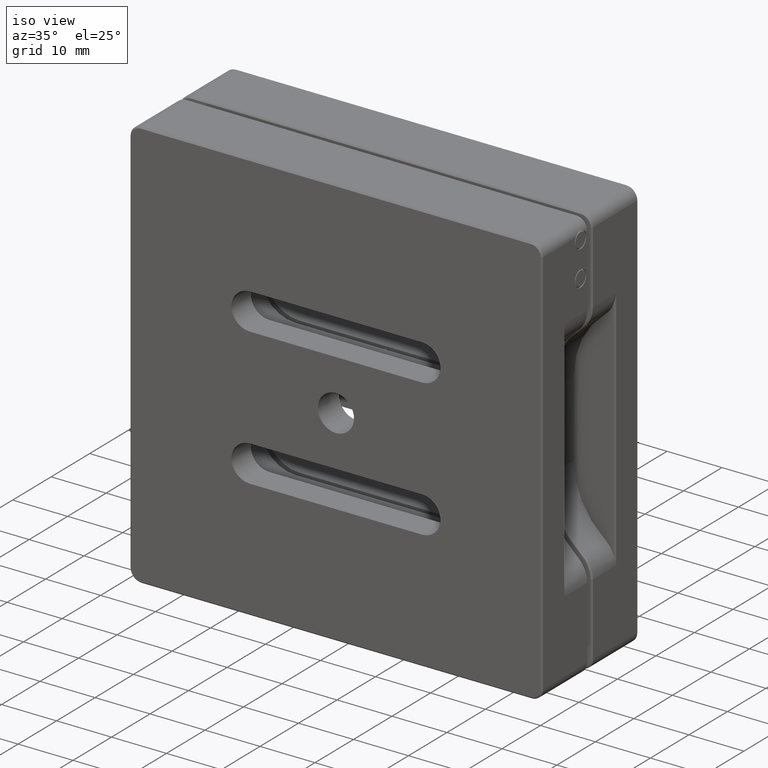
[diagram: clean part render]
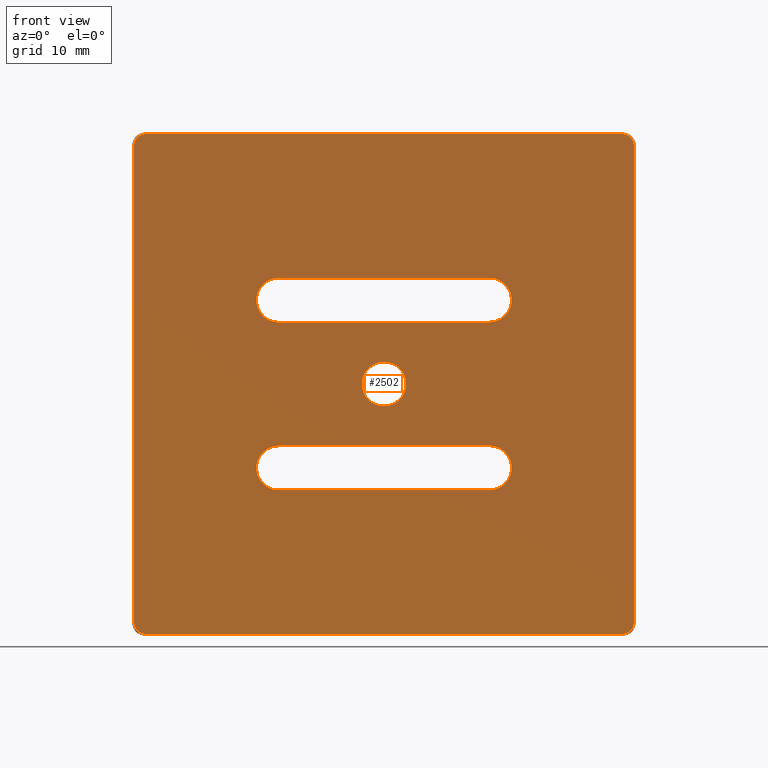
[diagram: tour spotlight — one face highlighted and labeled with its STEP entity id]
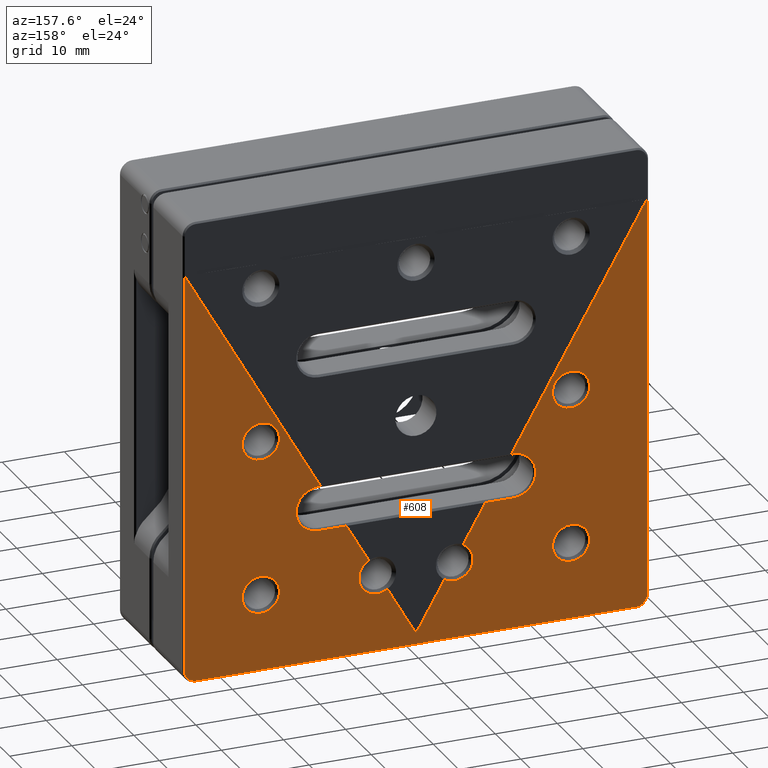
[diagram: tour spotlight — one face highlighted and labeled with its STEP entity id]
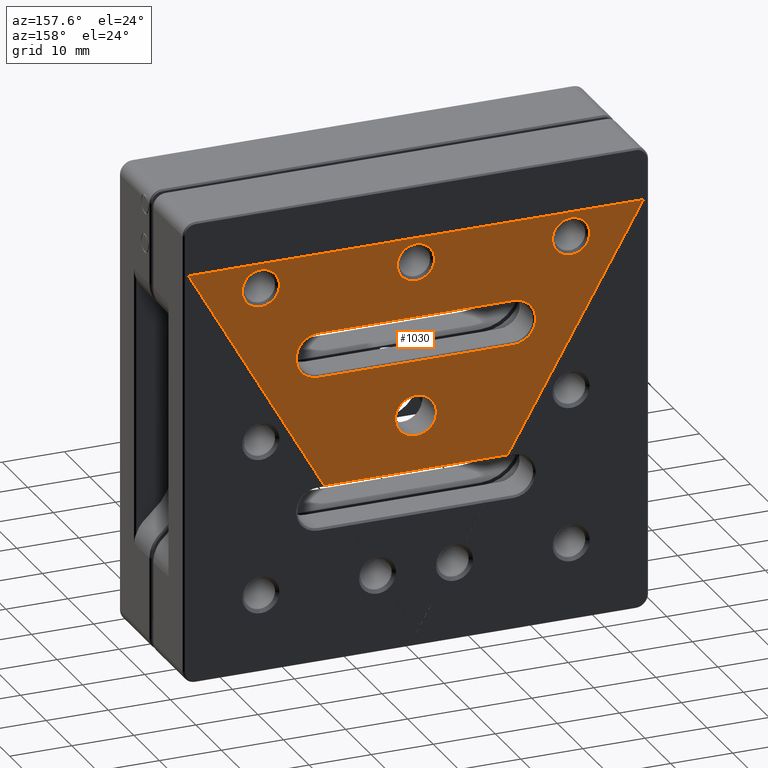
[diagram: tour spotlight — one face highlighted and labeled with its STEP entity id]
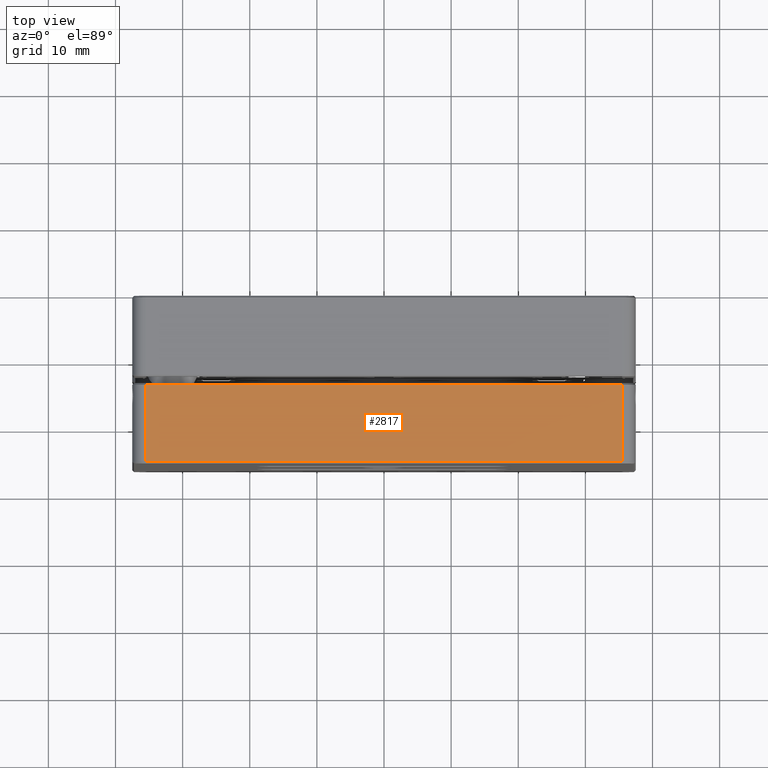
[diagram: tour spotlight — one face highlighted and labeled with its STEP entity id]
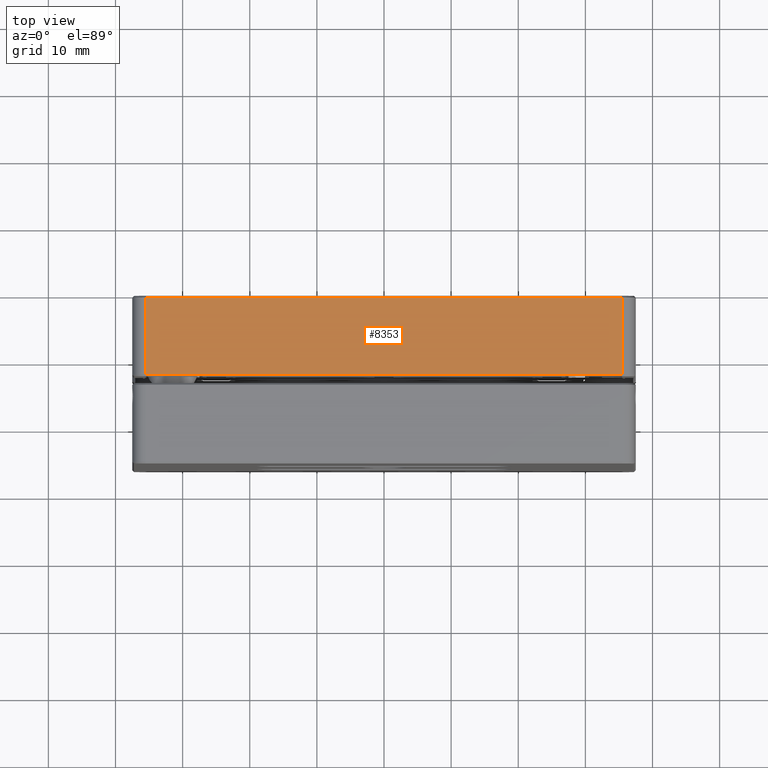
[diagram: tour spotlight — one face highlighted and labeled with its STEP entity id]
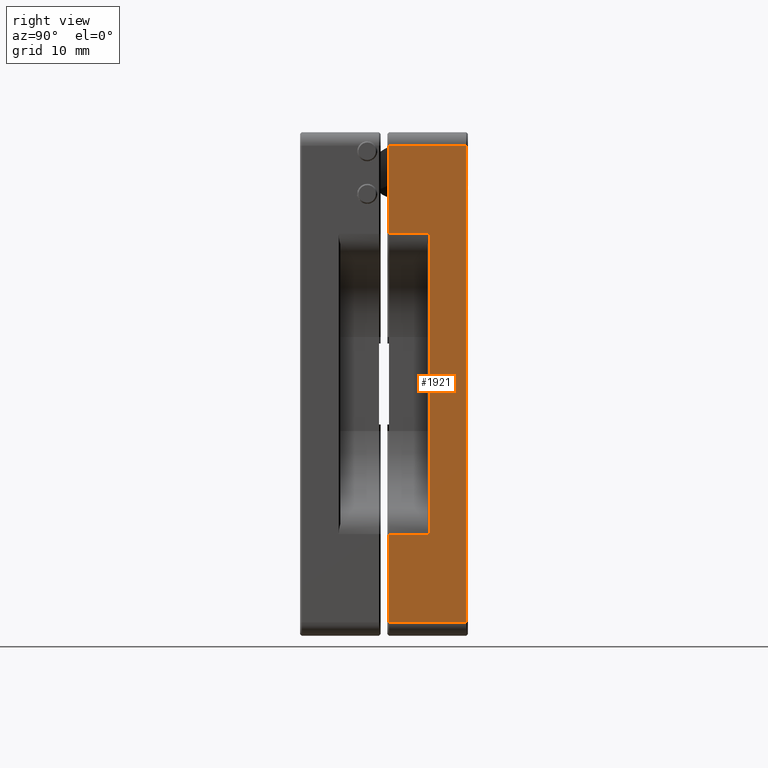
[diagram: tour spotlight — one face highlighted and labeled with its STEP entity id]
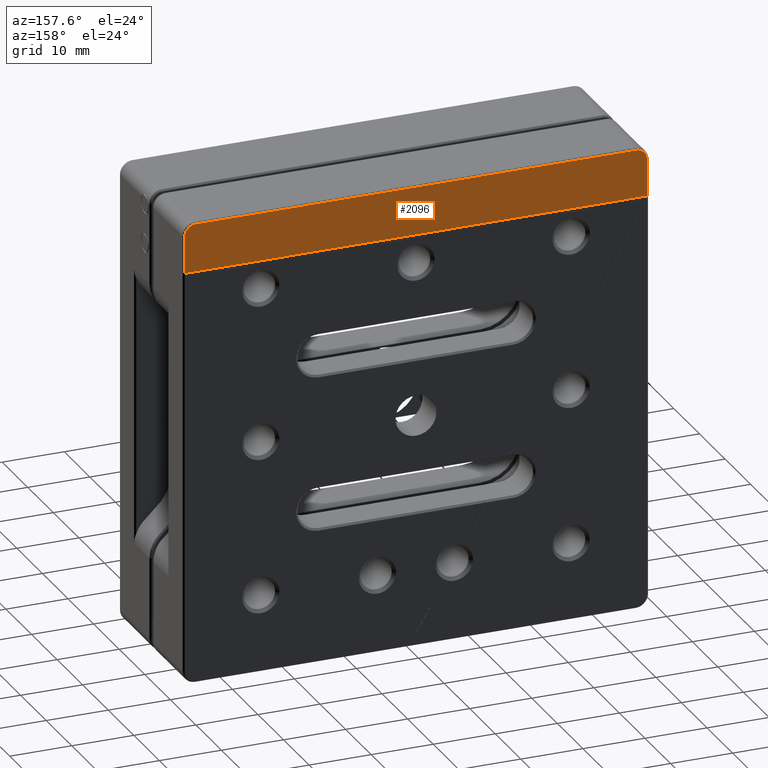
[diagram: tour spotlight — one face highlighted and labeled with its STEP entity id]
A machine part: a face-by-face anatomy tour. The part has 247 B-rep faces; the first image is the clean iso view, then the 7 largest visible faces are spotlighted one at a time (largest first), each with its STEP entity span.

Face 1 — front view, entity #2502. In plain terms, the highlighted planar face has unit normal (0, 1, 0).
Definition (entity closure, byte-faithful):
#86 = EDGE_CURVE ( 'NONE', #3276, #7490, #7130, .T. ) ;
#98 = CIRCLE ( 'NONE', #3845, 1.749999999999987566 ) ;
#170 = EDGE_LOOP ( 'NONE', ( #4213, #1950, #1456, #8848 ) ) ;
#174 = CARTESIAN_POINT ( 'NONE',  ( 35.49999999999999289, -6.000000000000000000, -35.50000000000000000 ) ) ;
#192 = EDGE_CURVE ( 'NONE', #3245, #2736, #5531, .T. ) ;
#203 = DIRECTION ( 'NONE',  ( -0.0000000000000000000, 1.000000000000000000, -0.0000000000000000000 ) ) ;
#231 = CARTESIAN_POINT ( 'NONE',  ( 35.50000000000000711, -6.000000000000000000, 37.24999999999998579 ) ) ;
#233 = DIRECTION ( 'NONE',  ( -0.0000000000000000000, 1.000000000000000000, -0.0000000000000000000 ) ) ;
#283 = CARTESIAN_POINT ( 'NONE',  ( 37.24999999999997868, -6.000000000000000000, -35.50000000000000000 ) ) ;
#337 = CARTESIAN_POINT ( 'NONE',  ( 15.69999999999999929, -6.000000000000000000, -15.79999999999999893 ) ) ;
#347 = CARTESIAN_POINT ( 'NONE',  ( -15.69999999999999929, -6.000000000000000000, -9.200000000000002842 ) ) ;
#354 = VERTEX_POINT ( 'NONE', #1638 ) ;
#375 = EDGE_CURVE ( 'NONE', #6116, #3048, #6165, .T. ) ;
#394 = ORIENTED_EDGE ( 'NONE', *, *, #4729, .T. ) ;
#490 = EDGE_LOOP ( 'NONE', ( #896, #5571 ) ) ;
#550 = CARTESIAN_POINT ( 'NONE',  ( 0.0000000000000000000, -6.000000000000000000, 3.299999999999997158 ) ) ;
#555 = DIRECTION ( 'NONE',  ( -0.0000000000000000000, 1.000000000000000000, -0.0000000000000000000 ) ) ;
#636 = CARTESIAN_POINT ( 'NONE',  ( -15.69999999999999929, -6.000000000000000000, 15.79999999999999893 ) ) ;
#667 = LINE ( 'NONE', #5902, #7341 ) ;
#674 = CIRCLE ( 'NONE', #8308, 3.299999999999997158 ) ;
#715 = ORIENTED_EDGE ( 'NONE', *, *, #6585, .T. ) ;
#838 = EDGE_CURVE ( 'NONE', #2736, #6116, #5522, .T. ) ;
#846 = DIRECTION ( 'NONE',  ( 0.0000000000000000000, 1.000000000000000000, 0.0000000000000000000 ) ) ;
#850 = DIRECTION ( 'NONE',  ( 0.0000000000000000000, 0.0000000000000000000, 1.000000000000000000 ) ) ;
#879 = VECTOR ( 'NONE', #2941, 1000.000000000000000 ) ;
#896 = ORIENTED_EDGE ( 'NONE', *, *, #1873, .T. ) ;
#909 = CARTESIAN_POINT ( 'NONE',  ( -15.69999999999999929, -6.000000000000000000, -12.50000000000000000 ) ) ;
#939 = DIRECTION ( 'NONE',  ( -0.0000000000000000000, 1.000000000000000000, -0.0000000000000000000 ) ) ;
#947 = ORIENTED_EDGE ( 'NONE', *, *, #8776, .T. ) ;
#969 = ORIENTED_EDGE ( 'NONE', *, *, #5706, .F. ) ;
#1209 = CARTESIAN_POINT ( 'NONE',  ( 15.69999999999999929, -6.000000000000000000, 9.200000000000002842 ) ) ;
#1221 = CARTESIAN_POINT ( 'NONE',  ( -15.69999999999999929, -6.000000000000000000, 9.200000000000002842 ) ) ;
#1281 = DIRECTION ( 'NONE',  ( -0.0000000000000000000, 1.000000000000000000, -0.0000000000000000000 ) ) ;
#1338 = CARTESIAN_POINT ( 'NONE',  ( -35.49999999999999289, -6.000000000000000000, 35.50000000000000000 ) ) ;
#1429 = CIRCLE ( 'NONE', #8213, 1.749999999999987566 ) ;
#1456 = ORIENTED_EDGE ( 'NONE', *, *, #2670, .F. ) ;
#1507 = CARTESIAN_POINT ( 'NONE',  ( 0.0000000000000000000, -6.000000000000000000, 0.0000000000000000000 ) ) ;
#1598 = AXIS2_PLACEMENT_3D ( 'NONE', #7574, #846, #6303 ) ;
#1638 = CARTESIAN_POINT ( 'NONE',  ( -35.50000000000000711, -6.000000000000000000, -37.24999999999998579 ) ) ;
#1688 = DIRECTION ( 'NONE',  ( 0.0000000000000000000, 0.0000000000000000000, 1.000000000000000000 ) ) ;
#1694 = AXIS2_PLACEMENT_3D ( 'NONE', #1338, #4218, #7899 ) ;
#1810 = CARTESIAN_POINT ( 'NONE',  ( -15.69999999999999929, -6.000000000000000000, -15.79999999999999893 ) ) ;
#1873 = EDGE_CURVE ( 'NONE', #8589, #7730, #2949, .T. ) ;
#1883 = FACE_BOUND ( 'NONE', #490, .T. ) ;
#1950 = ORIENTED_EDGE ( 'NONE', *, *, #3526, .T. ) ;
#2029 = LINE ( 'NONE', #4521, #2671 ) ;
#2095 = CARTESIAN_POINT ( 'NONE',  ( 0.0000000000000000000, -6.000000000000000000, 0.0000000000000000000 ) ) ;
#2164 = VERTEX_POINT ( 'NONE', #2467 ) ;
#2208 = CARTESIAN_POINT ( 'NONE',  ( -35.50000000000000711, -6.000000000000000000, -35.50000000000000000 ) ) ;
#2219 = DIRECTION ( 'NONE',  ( 0.0000000000000000000, 0.0000000000000000000, 1.000000000000000000 ) ) ;
#2273 = ORIENTED_EDGE ( 'NONE', *, *, #2843, .T. ) ;
#2310 = DIRECTION ( 'NONE',  ( 0.0000000000000000000, 0.0000000000000000000, 1.000000000000000000 ) ) ;
#2379 = VERTEX_POINT ( 'NONE', #636 ) ;
#2467 = CARTESIAN_POINT ( 'NONE',  ( -15.69999999999999929, -6.000000000000000000, 9.200000000000002842 ) ) ;
#2502 = ADVANCED_FACE ( 'NONE', ( #3881, #3984, #6948, #1883 ), #7671, .F. ) ;
#2551 = DIRECTION ( 'NONE',  ( 1.000000000000000000, -0.0000000000000000000, -0.0000000000000000000 ) ) ;
#2619 = VECTOR ( 'NONE', #2551, 1000.000000000000000 ) ;
#2638 = ORIENTED_EDGE ( 'NONE', *, *, #192, .T. ) ;
#2670 = EDGE_CURVE ( 'NONE', #6364, #5647, #3561, .T. ) ;
#2671 = VECTOR ( 'NONE', #8592, 1000.000000000000000 ) ;
#2718 = AXIS2_PLACEMENT_3D ( 'NONE', #8672, #1281, #7311 ) ;
#2736 = VERTEX_POINT ( 'NONE', #7159 ) ;
#2759 = CARTESIAN_POINT ( 'NONE',  ( -37.24999999999997868, -6.000000000000000000, 35.50000000000000000 ) ) ;
#2770 = CARTESIAN_POINT ( 'NONE',  ( -15.69999999999999929, -6.000000000000000000, -9.200000000000002842 ) ) ;
#2812 = VERTEX_POINT ( 'NONE', #3983 ) ;
#2843 = EDGE_CURVE ( 'NONE', #2379, #6163, #3668, .T. ) ;
#2941 = DIRECTION ( 'NONE',  ( 1.850371707708594070E-16, 0.0000000000000000000, 1.000000000000000000 ) ) ;
#2949 = CIRCLE ( 'NONE', #2964, 3.299999999999997158 ) ;
#2964 = AXIS2_PLACEMENT_3D ( 'NONE', #1507, #203, #8380 ) ;
#3048 = VERTEX_POINT ( 'NONE', #8278 ) ;
#3127 = CIRCLE ( 'NONE', #1694, 1.749999999999987566 ) ;
#3245 = VERTEX_POINT ( 'NONE', #283 ) ;
#3268 = ORIENTED_EDGE ( 'NONE', *, *, #375, .T. ) ;
#3276 = VERTEX_POINT ( 'NONE', #347 ) ;
#3370 = CARTESIAN_POINT ( 'NONE',  ( -15.69999999999999929, -6.000000000000000000, 15.79999999999999893 ) ) ;
#3379 = EDGE_CURVE ( 'NONE', #2164, #2379, #6735, .T. ) ;
#3471 = AXIS2_PLACEMENT_3D ( 'NONE', #8482, #5107, #1688 ) ;
#3506 = CARTESIAN_POINT ( 'NONE',  ( 15.69999999999999929, -6.000000000000000000, -9.200000000000002842 ) ) ;
#3512 = DIRECTION ( 'NONE',  ( -0.0000000000000000000, 1.000000000000000000, -0.0000000000000000000 ) ) ;
#3526 = EDGE_CURVE ( 'NONE', #7490, #5647, #4067, .T. ) ;
#3536 = EDGE_CURVE ( 'NONE', #6364, #3276, #674, .T. ) ;
#3561 = LINE ( 'NONE', #1810, #2619 ) ;
#3668 = LINE ( 'NONE', #3370, #4609 ) ;
#3845 = AXIS2_PLACEMENT_3D ( 'NONE', #174, #8325, #850 ) ;
#3881 = FACE_OUTER_BOUND ( 'NONE', #8374, .T. ) ;
#3904 = DIRECTION ( 'NONE',  ( 1.000000000000000000, -0.0000000000000000000, -0.0000000000000000000 ) ) ;
#3983 = CARTESIAN_POINT ( 'NONE',  ( 35.49999999999999289, -6.000000000000000000, -37.24999999999998579 ) ) ;
#3984 = FACE_BOUND ( 'NONE', #170, .T. ) ;
#4027 = DIRECTION ( 'NONE',  ( 1.000000000000000000, -0.0000000000000000000, -0.0000000000000000000 ) ) ;
#4038 = DIRECTION ( 'NONE',  ( 1.000000000000000000, -0.0000000000000000000, -0.0000000000000000000 ) ) ;
#4067 = CIRCLE ( 'NONE', #6489, 3.299999999999997158 ) ;
#4182 = ORIENTED_EDGE ( 'NONE', *, *, #4308, .T. ) ;
#4213 = ORIENTED_EDGE ( 'NONE', *, *, #86, .T. ) ;
#4218 = DIRECTION ( 'NONE',  ( -0.0000000000000000000, -1.000000000000000000, -0.0000000000000000000 ) ) ;
#4253 = CIRCLE ( 'NONE', #2718, 3.299999999999997158 ) ;
#4283 = CARTESIAN_POINT ( 'NONE',  ( 15.69999999999999929, -6.000000000000000000, -12.50000000000000000 ) ) ;
#4308 = EDGE_CURVE ( 'NONE', #354, #2812, #667, .T. ) ;
#4521 = CARTESIAN_POINT ( 'NONE',  ( -37.24999999999998579, -6.000000000000000000, 6.892634611214509840E-15 ) ) ;
#4609 = VECTOR ( 'NONE', #4038, 1000.000000000000000 ) ;
#4672 = CARTESIAN_POINT ( 'NONE',  ( -37.24999999999999289, -6.000000000000000000, -35.50000000000000000 ) ) ;
#4729 = EDGE_CURVE ( 'NONE', #5949, #7611, #2029, .T. ) ;
#4793 = CARTESIAN_POINT ( 'NONE',  ( 4.041334437186263045E-16, -6.000000000000000000, -3.299999999999997158 ) ) ;
#4853 = VERTEX_POINT ( 'NONE', #1209 ) ;
#4994 = VECTOR ( 'NONE', #6342, 1000.000000000000000 ) ;
#5011 = EDGE_LOOP ( 'NONE', ( #8778, #2273, #7177, #969 ) ) ;
#5107 = DIRECTION ( 'NONE',  ( -0.0000000000000000000, -1.000000000000000000, -0.0000000000000000000 ) ) ;
#5320 = VECTOR ( 'NONE', #4027, 1000.000000000000000 ) ;
#5340 = ORIENTED_EDGE ( 'NONE', *, *, #6901, .T. ) ;
#5522 = CIRCLE ( 'NONE', #3471, 1.749999999999987566 ) ;
#5531 = LINE ( 'NONE', #7584, #879 ) ;
#5545 = DIRECTION ( 'NONE',  ( 0.0000000000000000000, 0.0000000000000000000, 1.000000000000000000 ) ) ;
#5571 = ORIENTED_EDGE ( 'NONE', *, *, #6536, .T. ) ;
#5647 = VERTEX_POINT ( 'NONE', #337 ) ;
#5649 = CARTESIAN_POINT ( 'NONE',  ( 0.0000000000000000000, -6.000000000000000000, 37.24999999999998579 ) ) ;
#5706 = EDGE_CURVE ( 'NONE', #2164, #4853, #7335, .T. ) ;
#5880 = ORIENTED_EDGE ( 'NONE', *, *, #838, .T. ) ;
#5902 = CARTESIAN_POINT ( 'NONE',  ( 0.0000000000000000000, -6.000000000000000000, -37.24999999999998579 ) ) ;
#5949 = VERTEX_POINT ( 'NONE', #2759 ) ;
#5957 = DIRECTION ( 'NONE',  ( 0.0000000000000000000, 0.0000000000000000000, 1.000000000000000000 ) ) ;
#6116 = VERTEX_POINT ( 'NONE', #231 ) ;
#6163 = VERTEX_POINT ( 'NONE', #8346 ) ;
#6165 = LINE ( 'NONE', #5649, #4994 ) ;
#6175 = VECTOR ( 'NONE', #3904, 1000.000000000000000 ) ;
#6303 = DIRECTION ( 'NONE',  ( 0.0000000000000000000, -0.0000000000000000000, 1.000000000000000000 ) ) ;
#6342 = DIRECTION ( 'NONE',  ( -1.000000000000000000, 0.0000000000000000000, 0.0000000000000000000 ) ) ;
#6364 = VERTEX_POINT ( 'NONE', #6628 ) ;
#6489 = AXIS2_PLACEMENT_3D ( 'NONE', #4283, #939, #2219 ) ;
#6521 = CIRCLE ( 'NONE', #8685, 3.299999999999997158 ) ;
#6536 = EDGE_CURVE ( 'NONE', #7730, #8589, #6521, .T. ) ;
#6585 = EDGE_CURVE ( 'NONE', #7611, #354, #1429, .T. ) ;
#6590 = DIRECTION ( 'NONE',  ( 1.000000000000000000, 0.0000000000000000000, 0.0000000000000000000 ) ) ;
#6617 = CARTESIAN_POINT ( 'NONE',  ( -15.69999999999999929, -6.000000000000000000, 12.50000000000000000 ) ) ;
#6628 = CARTESIAN_POINT ( 'NONE',  ( -15.69999999999999929, -6.000000000000000000, -15.79999999999999893 ) ) ;
#6735 = CIRCLE ( 'NONE', #7444, 3.299999999999997158 ) ;
#6901 = EDGE_CURVE ( 'NONE', #3048, #5949, #3127, .T. ) ;
#6908 = DIRECTION ( 'NONE',  ( -0.0000000000000000000, -1.000000000000000000, -0.0000000000000000000 ) ) ;
#6948 = FACE_BOUND ( 'NONE', #5011, .T. ) ;
#7130 = LINE ( 'NONE', #2770, #5320 ) ;
#7159 = CARTESIAN_POINT ( 'NONE',  ( 37.24999999999999289, -6.000000000000000000, 35.50000000000000000 ) ) ;
#7177 = ORIENTED_EDGE ( 'NONE', *, *, #7662, .T. ) ;
#7311 = DIRECTION ( 'NONE',  ( 0.0000000000000000000, 0.0000000000000000000, 1.000000000000000000 ) ) ;
#7335 = LINE ( 'NONE', #1221, #6175 ) ;
#7341 = VECTOR ( 'NONE', #6590, 1000.000000000000000 ) ;
#7444 = AXIS2_PLACEMENT_3D ( 'NONE', #6617, #555, #5957 ) ;
#7490 = VERTEX_POINT ( 'NONE', #3506 ) ;
#7574 = CARTESIAN_POINT ( 'NONE',  ( 0.0000000000000000000, -6.000000000000000000, 0.0000000000000000000 ) ) ;
#7584 = CARTESIAN_POINT ( 'NONE',  ( 37.24999999999998579, -6.000000000000000000, -6.892634611214509840E-15 ) ) ;
#7611 = VERTEX_POINT ( 'NONE', #4672 ) ;
#7662 = EDGE_CURVE ( 'NONE', #6163, #4853, #4253, .T. ) ;
#7671 = PLANE ( 'NONE',  #1598 ) ;
#7730 = VERTEX_POINT ( 'NONE', #4793 ) ;
#7899 = DIRECTION ( 'NONE',  ( 0.0000000000000000000, 0.0000000000000000000, 1.000000000000000000 ) ) ;
#8213 = AXIS2_PLACEMENT_3D ( 'NONE', #2208, #6908, #8277 ) ;
#8277 = DIRECTION ( 'NONE',  ( 0.0000000000000000000, 0.0000000000000000000, 1.000000000000000000 ) ) ;
#8278 = CARTESIAN_POINT ( 'NONE',  ( -35.49999999999999289, -6.000000000000000000, 37.24999999999998579 ) ) ;
#8308 = AXIS2_PLACEMENT_3D ( 'NONE', #909, #233, #2310 ) ;
#8325 = DIRECTION ( 'NONE',  ( -0.0000000000000000000, -1.000000000000000000, -0.0000000000000000000 ) ) ;
#8346 = CARTESIAN_POINT ( 'NONE',  ( 15.69999999999999929, -6.000000000000000000, 15.79999999999999893 ) ) ;
#8374 = EDGE_LOOP ( 'NONE', ( #5340, #394, #715, #4182, #947, #2638, #5880, #3268 ) ) ;
#8380 = DIRECTION ( 'NONE',  ( 0.0000000000000000000, 0.0000000000000000000, 1.000000000000000000 ) ) ;
#8482 = CARTESIAN_POINT ( 'NONE',  ( 35.50000000000000711, -6.000000000000000000, 35.50000000000000000 ) ) ;
#8589 = VERTEX_POINT ( 'NONE', #550 ) ;
#8592 = DIRECTION ( 'NONE',  ( -1.850371707708594070E-16, 0.0000000000000000000, -1.000000000000000000 ) ) ;
#8672 = CARTESIAN_POINT ( 'NONE',  ( 15.69999999999999929, -6.000000000000000000, 12.50000000000000000 ) ) ;
#8685 = AXIS2_PLACEMENT_3D ( 'NONE', #2095, #3512, #5545 ) ;
#8776 = EDGE_CURVE ( 'NONE', #2812, #3245, #98, .T. ) ;
#8778 = ORIENTED_EDGE ( 'NONE', *, *, #3379, .T. ) ;
#8848 = ORIENTED_EDGE ( 'NONE', *, *, #3536, .T. ) ;

Face 2 — auxiliary view, entity #608. In plain terms, the highlighted planar face has unit normal (-0, -1, -0).
Definition (entity closure, byte-faithful):
#12 = EDGE_CURVE ( 'NONE', #244, #8694, #8198, .T. ) ;
#45 = ORIENTED_EDGE ( 'NONE', *, *, #826, .F. ) ;
#102 = LINE ( 'NONE', #962, #8080 ) ;
#129 = DIRECTION ( 'NONE',  ( 0.0000000000000000000, 0.0000000000000000000, -1.000000000000000000 ) ) ;
#147 = ORIENTED_EDGE ( 'NONE', *, *, #1178, .T. ) ;
#152 = CARTESIAN_POINT ( 'NONE',  ( -24.99999999999993605, 18.99103273201167141, -3.000000000000027089 ) ) ;
#153 = EDGE_CURVE ( 'NONE', #5246, #613, #3431, .T. ) ;
#218 = CARTESIAN_POINT ( 'NONE',  ( -6.199999999999934452, 18.99103273201167141, -28.00000000000003197 ) ) ;
#243 = DIRECTION ( 'NONE',  ( 0.0000000000000000000, 0.0000000000000000000, 1.000000000000000000 ) ) ;
#244 = VERTEX_POINT ( 'NONE', #152 ) ;
#300 = CIRCLE ( 'NONE', #3455, 2.999999999999999112 ) ;
#304 = CIRCLE ( 'NONE', #6040, 2.999999999999999112 ) ;
#351 = DIRECTION ( 'NONE',  ( 0.0000000000000000000, 0.0000000000000000000, 1.000000000000000000 ) ) ;
#372 = LINE ( 'NONE', #8491, #7388 ) ;
#419 = AXIS2_PLACEMENT_3D ( 'NONE', #2567, #5307, #4628 ) ;
#423 = CIRCLE ( 'NONE', #7828, 2.999999999999999112 ) ;
#576 = CARTESIAN_POINT ( 'NONE',  ( -35.49999999999992895, 18.99103273201167852, -37.25000000000001421 ) ) ;
#597 = CARTESIAN_POINT ( 'NONE',  ( 35.50000000000006395, 18.99103273201165720, -37.25000000000001421 ) ) ;
#608 = ADVANCED_FACE ( 'NONE', ( #1503, #7220, #2674, #2883, #860 ), #8720, .F. ) ;
#613 = VERTEX_POINT ( 'NONE', #6720 ) ;
#635 = CARTESIAN_POINT ( 'NONE',  ( 6.658343255363953998E-14, 18.99103273201166431, -2.742250870824136655E-14 ) ) ;
#678 = CARTESIAN_POINT ( 'NONE',  ( 25.00000000000006750, 18.99103273201166076, -25.00000000000003197 ) ) ;
#705 = DIRECTION ( 'NONE',  ( -1.000000000000000000, 2.381043725472791608E-16, -7.171406736960403111E-18 ) ) ;
#722 = EDGE_LOOP ( 'NONE', ( #8385, #4242 ) ) ;
#728 = VERTEX_POINT ( 'NONE', #4816 ) ;
#747 = CIRCLE ( 'NONE', #8343, 2.999999999999999112 ) ;
#792 = CARTESIAN_POINT ( 'NONE',  ( 37.25000000000004974, 18.99103273201165720, -2.026273919607508186E-14 ) ) ;
#826 = EDGE_CURVE ( 'NONE', #5154, #8244, #423, .T. ) ;
#828 = DIRECTION ( 'NONE',  ( 2.577839154037636682E-16, 1.000000000000000000, 5.551115123125782702E-17 ) ) ;
#860 = FACE_OUTER_BOUND ( 'NONE', #5791, .T. ) ;
#875 = VERTEX_POINT ( 'NONE', #5823 ) ;
#962 = CARTESIAN_POINT ( 'NONE',  ( 5.718770429563439995E-14, 18.99103273201166786, -35.50000000000002132 ) ) ;
#971 = EDGE_CURVE ( 'NONE', #5264, #3981, #747, .T. ) ;
#985 = VECTOR ( 'NONE', #705, 1000.000000000000000 ) ;
#997 = VECTOR ( 'NONE', #1554, 1000.000000000000227 ) ;
#1039 = VERTEX_POINT ( 'NONE', #2456 ) ;
#1109 = DIRECTION ( 'NONE',  ( 2.577839154037636682E-16, 1.000000000000000000, 5.551115123125782702E-17 ) ) ;
#1132 = ORIENTED_EDGE ( 'NONE', *, *, #5161, .F. ) ;
#1178 = EDGE_CURVE ( 'NONE', #1879, #7040, #2779, .T. ) ;
#1188 = CIRCLE ( 'NONE', #5262, 2.999999999999999112 ) ;
#1208 = LINE ( 'NONE', #7314, #985 ) ;
#1212 = CIRCLE ( 'NONE', #8799, 1.749999999999987566 ) ;
#1259 = AXIS2_PLACEMENT_3D ( 'NONE', #8646, #4572, #7946 ) ;
#1266 = ORIENTED_EDGE ( 'NONE', *, *, #153, .T. ) ;
#1330 = DIRECTION ( 'NONE',  ( 0.0000000000000000000, 0.0000000000000000000, 1.000000000000000000 ) ) ;
#1401 = CARTESIAN_POINT ( 'NONE',  ( 6.546920626910499331E-14, 18.99103273201166786, -16.10000000000003340 ) ) ;
#1427 = CARTESIAN_POINT ( 'NONE',  ( -6.199999999999934452, 18.99103273201167141, -25.00000000000003197 ) ) ;
#1443 = DIRECTION ( 'NONE',  ( 1.000000000000000000, -2.381043725472791608E-16, 7.171406736960403111E-18 ) ) ;
#1462 = DIRECTION ( 'NONE',  ( -1.000000000000000000, 2.381043725472791608E-16, -7.171406736960403111E-18 ) ) ;
#1503 = FACE_BOUND ( 'NONE', #2559, .T. ) ;
#1554 = DIRECTION ( 'NONE',  ( -0.5000000000000007772, 7.097811911405071918E-17, 0.8660254037844381525 ) ) ;
#1637 = AXIS2_PLACEMENT_3D ( 'NONE', #635, #5976, #7368 ) ;
#1667 = LINE ( 'NONE', #7632, #3468 ) ;
#1674 = ORIENTED_EDGE ( 'NONE', *, *, #3404, .F. ) ;
#1704 = DIRECTION ( 'NONE',  ( 2.577839154037636682E-16, 1.000000000000000000, 5.551115123125782702E-17 ) ) ;
#1728 = DIRECTION ( 'NONE',  ( -1.158305692469741335E-16, -5.551115123125778388E-17, 1.000000000000000000 ) ) ;
#1741 = ORIENTED_EDGE ( 'NONE', *, *, #5462, .T. ) ;
#1768 = EDGE_CURVE ( 'NONE', #7040, #2978, #3263, .T. ) ;
#1825 = VERTEX_POINT ( 'NONE', #4263 ) ;
#1826 = DIRECTION ( 'NONE',  ( 2.577839154037636682E-16, 1.000000000000000000, 5.551115123125782702E-17 ) ) ;
#1867 = VERTEX_POINT ( 'NONE', #2295 ) ;
#1879 = VERTEX_POINT ( 'NONE', #5559 ) ;
#1941 = VERTEX_POINT ( 'NONE', #7556 ) ;
#1945 = LINE ( 'NONE', #6018, #7674 ) ;
#1965 = DIRECTION ( 'NONE',  ( 2.577839154037636682E-16, 1.000000000000000000, 5.551115123125782702E-17 ) ) ;
#1981 = DIRECTION ( 'NONE',  ( -2.577839154037636682E-16, -1.000000000000000000, -5.551115123125782702E-17 ) ) ;
#2012 = ORIENTED_EDGE ( 'NONE', *, *, #1768, .T. ) ;
#2065 = DIRECTION ( 'NONE',  ( 2.577839154037636682E-16, 1.000000000000000000, 5.551115123125782702E-17 ) ) ;
#2068 = VECTOR ( 'NONE', #2425, 1000.000000000000000 ) ;
#2087 = EDGE_CURVE ( 'NONE', #2316, #1039, #4423, .T. ) ;
#2093 = AXIS2_PLACEMENT_3D ( 'NONE', #3909, #1109, #5833 ) ;
#2113 = DIRECTION ( 'NONE',  ( 1.000000000000000000, -2.381043725472791608E-16, 7.171406736960403111E-18 ) ) ;
#2121 = EDGE_CURVE ( 'NONE', #1039, #5046, #372, .T. ) ;
#2203 = ORIENTED_EDGE ( 'NONE', *, *, #4359, .F. ) ;
#2242 = VERTEX_POINT ( 'NONE', #5354 ) ;
#2249 = CIRCLE ( 'NONE', #2093, 2.999999999999999112 ) ;
#2289 = LINE ( 'NONE', #5362, #7043 ) ;
#2295 = CARTESIAN_POINT ( 'NONE',  ( 7.595445715224438565, 18.99103273201166431, -22.34430211510010622 ) ) ;
#2316 = VERTEX_POINT ( 'NONE', #576 ) ;
#2378 = ORIENTED_EDGE ( 'NONE', *, *, #6670, .F. ) ;
#2393 = DIRECTION ( 'NONE',  ( 2.577839154037636682E-16, 1.000000000000000000, 5.551115123125782702E-17 ) ) ;
#2425 = DIRECTION ( 'NONE',  ( -1.000000000000000000, 2.381043725472791608E-16, -7.171406736960403111E-18 ) ) ;
#2443 = CARTESIAN_POINT ( 'NONE',  ( -4.597821024512184884, 18.99103273201166786, -27.53634038143644958 ) ) ;
#2456 = CARTESIAN_POINT ( 'NONE',  ( -37.24999999999991473, 18.99103273201167852, -35.50000000000002132 ) ) ;
#2478 = CARTESIAN_POINT ( 'NONE',  ( -24.99999999999993605, 18.99103273201167141, -2.760179387666537696E-14 ) ) ;
#2479 = LINE ( 'NONE', #3169, #7665 ) ;
#2506 = EDGE_CURVE ( 'NONE', #3399, #613, #1667, .T. ) ;
#2519 = ORIENTED_EDGE ( 'NONE', *, *, #3725, .T. ) ;
#2559 = EDGE_LOOP ( 'NONE', ( #4216, #6216 ) ) ;
#2567 = CARTESIAN_POINT ( 'NONE',  ( -15.69999999999993356, 18.99103273201167141, -12.50000000000002842 ) ) ;
#2589 = CIRCLE ( 'NONE', #419, 3.600000000000005862 ) ;
#2591 = ORIENTED_EDGE ( 'NONE', *, *, #8253, .F. ) ;
#2601 = ORIENTED_EDGE ( 'NONE', *, *, #7032, .F. ) ;
#2652 = DIRECTION ( 'NONE',  ( -0.5000000000000013323, 1.671262534332289100E-16, -0.8660254037844380415 ) ) ;
#2674 = FACE_BOUND ( 'NONE', #722, .T. ) ;
#2771 = ORIENTED_EDGE ( 'NONE', *, *, #7150, .T. ) ;
#2779 = CIRCLE ( 'NONE', #5447, 3.600000000000005862 ) ;
#2790 = CARTESIAN_POINT ( 'NONE',  ( -24.99999999999993605, 18.99103273201167141, 2.999999999999971578 ) ) ;
#2837 = VERTEX_POINT ( 'NONE', #597 ) ;
#2883 = FACE_BOUND ( 'NONE', #6760, .T. ) ;
#2951 = CARTESIAN_POINT ( 'NONE',  ( -24.99999999999993605, 18.99103273201167497, -25.00000000000003197 ) ) ;
#2971 = CARTESIAN_POINT ( 'NONE',  ( -35.49999999999992895, 18.99103273201167852, -35.50000000000002132 ) ) ;
#2974 = CARTESIAN_POINT ( 'NONE',  ( 6.200000000000065015, 18.99103273201166431, -25.00000000000003197 ) ) ;
#2978 = VERTEX_POINT ( 'NONE', #8223 ) ;
#3015 = EDGE_CURVE ( 'NONE', #1941, #1879, #7052, .T. ) ;
#3146 = CARTESIAN_POINT ( 'NONE',  ( 25.00000000000006750, 18.99103273201166076, -2.724322353981735614E-14 ) ) ;
#3169 = CARTESIAN_POINT ( 'NONE',  ( 5.718770429563439995E-14, 18.99103273201166786, -35.50000000000002132 ) ) ;
#3187 = ORIENTED_EDGE ( 'NONE', *, *, #7123, .T. ) ;
#3263 = LINE ( 'NONE', #4145, #7494 ) ;
#3278 = ORIENTED_EDGE ( 'NONE', *, *, #3497, .F. ) ;
#3286 = EDGE_LOOP ( 'NONE', ( #1674, #2378 ) ) ;
#3340 = CARTESIAN_POINT ( 'NONE',  ( 5.718770429563439995E-14, 18.99103273201166786, -35.50000000000002132 ) ) ;
#3357 = DIRECTION ( 'NONE',  ( 0.0000000000000000000, 0.0000000000000000000, -1.000000000000000000 ) ) ;
#3392 = ORIENTED_EDGE ( 'NONE', *, *, #6627, .F. ) ;
#3399 = VERTEX_POINT ( 'NONE', #6645 ) ;
#3404 = EDGE_CURVE ( 'NONE', #2242, #5407, #4814, .T. ) ;
#3431 = LINE ( 'NONE', #1401, #6177 ) ;
#3435 = CIRCLE ( 'NONE', #7298, 2.999999999999999112 ) ;
#3455 = AXIS2_PLACEMENT_3D ( 'NONE', #6112, #2065, #8158 ) ;
#3468 = VECTOR ( 'NONE', #7541, 1000.000000000000227 ) ;
#3497 = EDGE_CURVE ( 'NONE', #8771, #5046, #2289, .T. ) ;
#3725 = EDGE_CURVE ( 'NONE', #2837, #2316, #5768, .T. ) ;
#3753 = DIRECTION ( 'NONE',  ( 2.577839154037636682E-16, 1.000000000000000000, 5.551115123125782702E-17 ) ) ;
#3797 = DIRECTION ( 'NONE',  ( 0.0000000000000000000, 0.0000000000000000000, -1.000000000000000000 ) ) ;
#3807 = CARTESIAN_POINT ( 'NONE',  ( 6.400548664687482978E-14, 18.99103273201166786, -37.25000000000001421 ) ) ;
#3909 = CARTESIAN_POINT ( 'NONE',  ( 25.00000000000006750, 18.99103273201166076, -2.724322353981735614E-14 ) ) ;
#3935 = CARTESIAN_POINT ( 'NONE',  ( -24.99999999999993605, 18.99103273201167497, -25.00000000000003197 ) ) ;
#3962 = VERTEX_POINT ( 'NONE', #3340 ) ;
#3981 = VERTEX_POINT ( 'NONE', #6292 ) ;
#4099 = VERTEX_POINT ( 'NONE', #4274 ) ;
#4145 = CARTESIAN_POINT ( 'NONE',  ( 6.596749380007697892E-14, 18.99103273201166786, -8.900000000000021672 ) ) ;
#4208 = DIRECTION ( 'NONE',  ( 0.0000000000000000000, 0.0000000000000000000, -1.000000000000000000 ) ) ;
#4216 = ORIENTED_EDGE ( 'NONE', *, *, #971, .F. ) ;
#4233 = VECTOR ( 'NONE', #5532, 1000.000000000000000 ) ;
#4242 = ORIENTED_EDGE ( 'NONE', *, *, #7707, .F. ) ;
#4263 = CARTESIAN_POINT ( 'NONE',  ( 4.597821024512308341, 18.99103273201166786, -27.53634038143644602 ) ) ;
#4274 = CARTESIAN_POINT ( 'NONE',  ( -24.99999999999993605, 18.99103273201167497, -22.00000000000003197 ) ) ;
#4359 = EDGE_CURVE ( 'NONE', #1825, #3962, #1945, .T. ) ;
#4395 = ORIENTED_EDGE ( 'NONE', *, *, #2506, .F. ) ;
#4423 = CIRCLE ( 'NONE', #6306, 1.749999999999987566 ) ;
#4460 = CARTESIAN_POINT ( 'NONE',  ( 15.70000000000006501, 18.99103273201166431, -8.900000000000021672 ) ) ;
#4556 = DIRECTION ( 'NONE',  ( 0.0000000000000000000, 0.0000000000000000000, -1.000000000000000000 ) ) ;
#4569 = EDGE_CURVE ( 'NONE', #8771, #728, #1208, .T. ) ;
#4572 = DIRECTION ( 'NONE',  ( 2.577839154037636682E-16, 1.000000000000000000, 5.551115123125782702E-17 ) ) ;
#4600 = LINE ( 'NONE', #5597, #997 ) ;
#4628 = DIRECTION ( 'NONE',  ( 0.0000000000000000000, 0.0000000000000000000, 1.000000000000000000 ) ) ;
#4814 = CIRCLE ( 'NONE', #7850, 2.999999999999999112 ) ;
#4816 = CARTESIAN_POINT ( 'NONE',  ( -15.69999999999993356, 18.99103273201167141, -8.900000000000021672 ) ) ;
#4914 = AXIS2_PLACEMENT_3D ( 'NONE', #2974, #828, #4208 ) ;
#4943 = CARTESIAN_POINT ( 'NONE',  ( 6.200000000000065015, 18.99103273201166431, -28.00000000000003197 ) ) ;
#4948 = CARTESIAN_POINT ( 'NONE',  ( -37.24999999999992895, 18.99103273201167141, 29.01889258194046661 ) ) ;
#5003 = VERTEX_POINT ( 'NONE', #5630 ) ;
#5020 = CARTESIAN_POINT ( 'NONE',  ( -6.199999999999934452, 18.99103273201167141, -25.00000000000003197 ) ) ;
#5040 = ORIENTED_EDGE ( 'NONE', *, *, #3015, .T. ) ;
#5045 = EDGE_CURVE ( 'NONE', #5003, #4099, #8723, .T. ) ;
#5046 = VERTEX_POINT ( 'NONE', #4948 ) ;
#5154 = VERTEX_POINT ( 'NONE', #2443 ) ;
#5161 = EDGE_CURVE ( 'NONE', #8694, #244, #304, .T. ) ;
#5228 = DIRECTION ( 'NONE',  ( 2.577839154037636682E-16, 1.000000000000000000, 5.551115123125782702E-17 ) ) ;
#5246 = VERTEX_POINT ( 'NONE', #8674 ) ;
#5262 = AXIS2_PLACEMENT_3D ( 'NONE', #1427, #8260, #8206 ) ;
#5264 = VERTEX_POINT ( 'NONE', #7435 ) ;
#5307 = DIRECTION ( 'NONE',  ( -2.577839154037636682E-16, -1.000000000000000000, -5.551115123125782702E-17 ) ) ;
#5354 = CARTESIAN_POINT ( 'NONE',  ( 25.00000000000006750, 18.99103273201166076, -28.00000000000003197 ) ) ;
#5362 = CARTESIAN_POINT ( 'NONE',  ( 5.718770429563439995E-14, 18.99103273201166786, -35.50000000000002132 ) ) ;
#5407 = VERTEX_POINT ( 'NONE', #8183 ) ;
#5447 = AXIS2_PLACEMENT_3D ( 'NONE', #6027, #1981, #1330 ) ;
#5462 = EDGE_CURVE ( 'NONE', #875, #5577, #6043, .T. ) ;
#5532 = DIRECTION ( 'NONE',  ( 1.158305692469741335E-16, 5.551115123125778388E-17, -1.000000000000000000 ) ) ;
#5559 = CARTESIAN_POINT ( 'NONE',  ( 15.70000000000006501, 18.99103273201166431, -16.10000000000003340 ) ) ;
#5577 = VERTEX_POINT ( 'NONE', #5677 ) ;
#5597 = CARTESIAN_POINT ( 'NONE',  ( 5.718770429563439995E-14, 18.99103273201166786, -35.50000000000002132 ) ) ;
#5630 = CARTESIAN_POINT ( 'NONE',  ( -24.99999999999993605, 18.99103273201167497, -28.00000000000003197 ) ) ;
#5677 = CARTESIAN_POINT ( 'NONE',  ( 37.25000000000005684, 18.99103273201165720, -35.50000000000002132 ) ) ;
#5717 = CARTESIAN_POINT ( 'NONE',  ( 25.00000000000006750, 18.99103273201166076, -25.00000000000003197 ) ) ;
#5768 = LINE ( 'NONE', #3807, #2068 ) ;
#5789 = DIRECTION ( 'NONE',  ( -0.5000000000000013323, 1.671262534332289100E-16, -0.8660254037844380415 ) ) ;
#5791 = EDGE_LOOP ( 'NONE', ( #8050, #3278, #6181, #2771, #1266, #4395, #6298, #45, #3392, #2203, #2591, #8390, #6201, #5040, #147, #2012, #2601, #1741, #3187, #2519, #6348 ) ) ;
#5823 = CARTESIAN_POINT ( 'NONE',  ( 37.25000000000004263, 18.99103273201165720, 29.01889258194042398 ) ) ;
#5833 = DIRECTION ( 'NONE',  ( 0.0000000000000000000, 0.0000000000000000000, -1.000000000000000000 ) ) ;
#5851 = DIRECTION ( 'NONE',  ( -0.5000000000000013323, 1.671262534332289100E-16, -0.8660254037844380415 ) ) ;
#5976 = DIRECTION ( 'NONE',  ( -2.577839154037636682E-16, -1.000000000000000000, -5.551115123125780853E-17 ) ) ;
#6006 = ORIENTED_EDGE ( 'NONE', *, *, #12, .F. ) ;
#6018 = CARTESIAN_POINT ( 'NONE',  ( 5.718770429563439995E-14, 18.99103273201166786, -35.50000000000002132 ) ) ;
#6027 = CARTESIAN_POINT ( 'NONE',  ( 15.70000000000006501, 18.99103273201166431, -12.50000000000002842 ) ) ;
#6040 = AXIS2_PLACEMENT_3D ( 'NONE', #2478, #1826, #3797 ) ;
#6043 = LINE ( 'NONE', #792, #4233 ) ;
#6074 = DIRECTION ( 'NONE',  ( -0.5000000000000007772, 7.097811911405071918E-17, 0.8660254037844381525 ) ) ;
#6112 = CARTESIAN_POINT ( 'NONE',  ( 6.200000000000065015, 18.99103273201166431, -25.00000000000003197 ) ) ;
#6177 = VECTOR ( 'NONE', #2113, 1000.000000000000000 ) ;
#6181 = ORIENTED_EDGE ( 'NONE', *, *, #4569, .T. ) ;
#6191 = EDGE_CURVE ( 'NONE', #1941, #1867, #102, .T. ) ;
#6201 = ORIENTED_EDGE ( 'NONE', *, *, #6191, .F. ) ;
#6216 = ORIENTED_EDGE ( 'NONE', *, *, #8435, .F. ) ;
#6268 = CIRCLE ( 'NONE', #4914, 2.999999999999999112 ) ;
#6292 = CARTESIAN_POINT ( 'NONE',  ( 25.00000000000006750, 18.99103273201166076, 2.999999999999972022 ) ) ;
#6298 = ORIENTED_EDGE ( 'NONE', *, *, #8634, .F. ) ;
#6306 = AXIS2_PLACEMENT_3D ( 'NONE', #2971, #7714, #243 ) ;
#6348 = ORIENTED_EDGE ( 'NONE', *, *, #2087, .T. ) ;
#6351 = DIRECTION ( 'NONE',  ( 2.577839154037636682E-16, 1.000000000000000000, 5.551115123125782702E-17 ) ) ;
#6446 = CARTESIAN_POINT ( 'NONE',  ( 35.50000000000006395, 18.99103273201165720, -35.50000000000002132 ) ) ;
#6513 = DIRECTION ( 'NONE',  ( 0.0000000000000000000, 0.0000000000000000000, -1.000000000000000000 ) ) ;
#6627 = EDGE_CURVE ( 'NONE', #3962, #5154, #4600, .T. ) ;
#6645 = CARTESIAN_POINT ( 'NONE',  ( -7.595445715224315997, 18.99103273201166786, -22.34430211510010977 ) ) ;
#6670 = EDGE_CURVE ( 'NONE', #5407, #2242, #3435, .T. ) ;
#6720 = CARTESIAN_POINT ( 'NONE',  ( -11.20059522227870197, 18.99103273201167141, -16.10000000000003340 ) ) ;
#6760 = EDGE_LOOP ( 'NONE', ( #6006, #1132 ) ) ;
#7006 = CIRCLE ( 'NONE', #8511, 2.999999999999999112 ) ;
#7007 = CARTESIAN_POINT ( 'NONE',  ( -15.35751716044402571, 18.99103273201167141, -8.900000000000019895 ) ) ;
#7032 = EDGE_CURVE ( 'NONE', #875, #2978, #2479, .T. ) ;
#7040 = VERTEX_POINT ( 'NONE', #4460 ) ;
#7043 = VECTOR ( 'NONE', #6074, 1000.000000000000227 ) ;
#7052 = LINE ( 'NONE', #7507, #8334 ) ;
#7063 = AXIS2_PLACEMENT_3D ( 'NONE', #2951, #6351, #129 ) ;
#7123 = EDGE_CURVE ( 'NONE', #5577, #2837, #1212, .T. ) ;
#7150 = EDGE_CURVE ( 'NONE', #728, #5246, #2589, .T. ) ;
#7220 = FACE_BOUND ( 'NONE', #3286, .T. ) ;
#7298 = AXIS2_PLACEMENT_3D ( 'NONE', #5717, #1704, #8434 ) ;
#7314 = CARTESIAN_POINT ( 'NONE',  ( 6.596749380007697892E-14, 18.99103273201166786, -8.900000000000021672 ) ) ;
#7368 = DIRECTION ( 'NONE',  ( 6.920660152388527348E-17, -5.551115123125782702E-17, 1.000000000000000000 ) ) ;
#7376 = DIRECTION ( 'NONE',  ( 0.0000000000000000000, 0.0000000000000000000, -1.000000000000000000 ) ) ;
#7388 = VECTOR ( 'NONE', #1728, 1000.000000000000000 ) ;
#7405 = DIRECTION ( 'NONE',  ( 2.577839154037636682E-16, 1.000000000000000000, 5.551115123125782702E-17 ) ) ;
#7435 = CARTESIAN_POINT ( 'NONE',  ( 25.00000000000006750, 18.99103273201166076, -3.000000000000026645 ) ) ;
#7494 = VECTOR ( 'NONE', #1462, 1000.000000000000000 ) ;
#7507 = CARTESIAN_POINT ( 'NONE',  ( 6.546920626910499331E-14, 18.99103273201166786, -16.10000000000003340 ) ) ;
#7541 = DIRECTION ( 'NONE',  ( -0.5000000000000007772, 7.097811911405071918E-17, 0.8660254037844381525 ) ) ;
#7556 = CARTESIAN_POINT ( 'NONE',  ( 11.20059522227882631, 18.99103273201166431, -16.10000000000003340 ) ) ;
#7632 = CARTESIAN_POINT ( 'NONE',  ( 5.718770429563439995E-14, 18.99103273201166786, -35.50000000000002132 ) ) ;
#7665 = VECTOR ( 'NONE', #5789, 999.9999999999997726 ) ;
#7674 = VECTOR ( 'NONE', #2652, 999.9999999999997726 ) ;
#7707 = EDGE_CURVE ( 'NONE', #4099, #5003, #7006, .T. ) ;
#7714 = DIRECTION ( 'NONE',  ( 2.577839154037636682E-16, 1.000000000000000000, 5.551115123125782702E-17 ) ) ;
#7828 = AXIS2_PLACEMENT_3D ( 'NONE', #5020, #3753, #6513 ) ;
#7850 = AXIS2_PLACEMENT_3D ( 'NONE', #678, #7405, #3357 ) ;
#7946 = DIRECTION ( 'NONE',  ( 0.0000000000000000000, 0.0000000000000000000, -1.000000000000000000 ) ) ;
#8050 = ORIENTED_EDGE ( 'NONE', *, *, #2121, .T. ) ;
#8080 = VECTOR ( 'NONE', #5851, 999.9999999999997726 ) ;
#8158 = DIRECTION ( 'NONE',  ( 0.0000000000000000000, 0.0000000000000000000, -1.000000000000000000 ) ) ;
#8183 = CARTESIAN_POINT ( 'NONE',  ( 25.00000000000006750, 18.99103273201166076, -22.00000000000003197 ) ) ;
#8193 = EDGE_CURVE ( 'NONE', #1867, #8245, #300, .T. ) ;
#8198 = CIRCLE ( 'NONE', #1259, 2.999999999999999112 ) ;
#8206 = DIRECTION ( 'NONE',  ( 0.0000000000000000000, 0.0000000000000000000, -1.000000000000000000 ) ) ;
#8223 = CARTESIAN_POINT ( 'NONE',  ( 15.35751716044415360, 18.99103273201166431, -8.900000000000021672 ) ) ;
#8244 = VERTEX_POINT ( 'NONE', #218 ) ;
#8245 = VERTEX_POINT ( 'NONE', #4943 ) ;
#8253 = EDGE_CURVE ( 'NONE', #8245, #1825, #6268, .T. ) ;
#8260 = DIRECTION ( 'NONE',  ( 2.577839154037636682E-16, 1.000000000000000000, 5.551115123125782702E-17 ) ) ;
#8334 = VECTOR ( 'NONE', #1443, 1000.000000000000000 ) ;
#8343 = AXIS2_PLACEMENT_3D ( 'NONE', #3146, #5228, #4556 ) ;
#8385 = ORIENTED_EDGE ( 'NONE', *, *, #5045, .F. ) ;
#8390 = ORIENTED_EDGE ( 'NONE', *, *, #8193, .F. ) ;
#8434 = DIRECTION ( 'NONE',  ( 0.0000000000000000000, 0.0000000000000000000, -1.000000000000000000 ) ) ;
#8435 = EDGE_CURVE ( 'NONE', #3981, #5264, #2249, .T. ) ;
#8491 = CARTESIAN_POINT ( 'NONE',  ( -37.24999999999992184, 18.99103273201167497, -3.458227822040765124E-14 ) ) ;
#8511 = AXIS2_PLACEMENT_3D ( 'NONE', #3935, #1965, #7376 ) ;
#8634 = EDGE_CURVE ( 'NONE', #8244, #3399, #1188, .T. ) ;
#8646 = CARTESIAN_POINT ( 'NONE',  ( -24.99999999999993605, 18.99103273201167141, -2.760179387666537696E-14 ) ) ;
#8674 = CARTESIAN_POINT ( 'NONE',  ( -15.69999999999993356, 18.99103273201167141, -16.10000000000003340 ) ) ;
#8694 = VERTEX_POINT ( 'NONE', #2790 ) ;
#8720 = PLANE ( 'NONE',  #1637 ) ;
#8723 = CIRCLE ( 'NONE', #7063, 2.999999999999999112 ) ;
#8771 = VERTEX_POINT ( 'NONE', #7007 ) ;
#8799 = AXIS2_PLACEMENT_3D ( 'NONE', #6446, #2393, #351 ) ;

Face 3 — auxiliary view, entity #1030. In plain terms, the highlighted planar face has unit normal (-0, -1, -0).
Definition (entity closure, byte-faithful):
#50 = EDGE_CURVE ( 'NONE', #3398, #4858, #4053, .T. ) ;
#63 = CARTESIAN_POINT ( 'NONE',  ( 6.719937130720212628E-14, 18.99103273201166431, 8.899999999999980815 ) ) ;
#113 = CARTESIAN_POINT ( 'NONE',  ( 5.725691089715828123E-14, 18.99103273201166786, -34.50000000000002132 ) ) ;
#270 = EDGE_LOOP ( 'NONE', ( #5382, #1373 ) ) ;
#389 = EDGE_CURVE ( 'NONE', #2300, #3804, #4483, .T. ) ;
#449 = VECTOR ( 'NONE', #6017, 999.9999999999998863 ) ;
#501 = DIRECTION ( 'NONE',  ( 2.577839154037636682E-16, 1.000000000000000000, 5.551115123125782702E-17 ) ) ;
#510 = CARTESIAN_POINT ( 'NONE',  ( 6.681181433866837092E-14, 18.99103273201166431, 3.299999999999970068 ) ) ;
#553 = EDGE_LOOP ( 'NONE', ( #3676, #6340 ) ) ;
#609 = AXIS2_PLACEMENT_3D ( 'NONE', #5938, #8689, #1897 ) ;
#666 = AXIS2_PLACEMENT_3D ( 'NONE', #2434, #1850, #4507 ) ;
#790 = DIRECTION ( 'NONE',  ( -0.4999999999999999445, 7.097811911405049732E-17, 0.8660254037844385966 ) ) ;
#845 = CARTESIAN_POINT ( 'NONE',  ( 25.00000000000007105, 18.99103273201165720, 21.99999999999997158 ) ) ;
#996 = AXIS2_PLACEMENT_3D ( 'NONE', #3244, #501, #6588 ) ;
#1010 = DIRECTION ( 'NONE',  ( -2.577839154037636682E-16, -1.000000000000000000, -5.551115123125782702E-17 ) ) ;
#1030 = ADVANCED_FACE ( 'NONE', ( #1495, #4574, #8279, #1073, #2989, #4355 ), #7958, .F. ) ;
#1033 = ORIENTED_EDGE ( 'NONE', *, *, #4187, .F. ) ;
#1073 = FACE_BOUND ( 'NONE', #4542, .T. ) ;
#1121 = VERTEX_POINT ( 'NONE', #4842 ) ;
#1247 = ORIENTED_EDGE ( 'NONE', *, *, #4720, .F. ) ;
#1275 = CARTESIAN_POINT ( 'NONE',  ( 6.524201155753176684E-14, 18.99103273201166431, -3.300000000000024691 ) ) ;
#1288 = CARTESIAN_POINT ( 'NONE',  ( 5.725691089715828123E-14, 18.99103273201166786, -34.50000000000002132 ) ) ;
#1340 = CARTESIAN_POINT ( 'NONE',  ( -36.66174209354118574, 18.99103273201167141, 28.99999999999997158 ) ) ;
#1373 = ORIENTED_EDGE ( 'NONE', *, *, #4800, .F. ) ;
#1428 = CARTESIAN_POINT ( 'NONE',  ( -15.69999999999993356, 18.99103273201166786, 12.49999999999997335 ) ) ;
#1495 = FACE_BOUND ( 'NONE', #553, .T. ) ;
#1538 = CARTESIAN_POINT ( 'NONE',  ( 6.769765883817409927E-14, 18.99103273201166431, 16.09999999999996589 ) ) ;
#1633 = ORIENTED_EDGE ( 'NONE', *, *, #5209, .F. ) ;
#1671 = CARTESIAN_POINT ( 'NONE',  ( 15.70000000000006501, 18.99103273201166076, 12.49999999999997335 ) ) ;
#1682 = ORIENTED_EDGE ( 'NONE', *, *, #50, .T. ) ;
#1767 = CARTESIAN_POINT ( 'NONE',  ( 7.157542473911864330E-14, 18.99103273201166431, 21.99999999999997158 ) ) ;
#1844 = CIRCLE ( 'NONE', #5140, 3.599999999999992095 ) ;
#1850 = DIRECTION ( 'NONE',  ( -2.577839154037636682E-16, -1.000000000000000000, -5.551115123125782702E-17 ) ) ;
#1864 = CARTESIAN_POINT ( 'NONE',  ( 25.00000000000007105, 18.99103273201165720, 24.99999999999997158 ) ) ;
#1897 = DIRECTION ( 'NONE',  ( 6.920660152388527348E-17, -5.551115123125782702E-17, 1.000000000000000000 ) ) ;
#2031 = EDGE_CURVE ( 'NONE', #1121, #3448, #3366, .T. ) ;
#2054 = DIRECTION ( 'NONE',  ( -2.577839154037636682E-16, -1.000000000000000000, -5.551115123125782702E-17 ) ) ;
#2162 = DIRECTION ( 'NONE',  ( 6.920660152388640746E-17, 0.0000000000000000000, 1.000000000000000000 ) ) ;
#2186 = LINE ( 'NONE', #1538, #5261 ) ;
#2261 = VECTOR ( 'NONE', #7122, 1000.000000000000000 ) ;
#2300 = VERTEX_POINT ( 'NONE', #1275 ) ;
#2335 = CARTESIAN_POINT ( 'NONE',  ( -15.69999999999993356, 18.99103273201166786, 8.899999999999980815 ) ) ;
#2421 = VERTEX_POINT ( 'NONE', #1340 ) ;
#2434 = CARTESIAN_POINT ( 'NONE',  ( 6.658343255363953998E-14, 18.99103273201166431, -2.742250870824136655E-14 ) ) ;
#2476 = EDGE_CURVE ( 'NONE', #3804, #2300, #8456, .T. ) ;
#2505 = EDGE_CURVE ( 'NONE', #3448, #4925, #2186, .T. ) ;
#2705 = VERTEX_POINT ( 'NONE', #4557 ) ;
#2764 = VERTEX_POINT ( 'NONE', #6601 ) ;
#2920 = VERTEX_POINT ( 'NONE', #4123 ) ;
#2989 = FACE_BOUND ( 'NONE', #3195, .T. ) ;
#3007 = DIRECTION ( 'NONE',  ( 0.0000000000000000000, 0.0000000000000000000, 1.000000000000000000 ) ) ;
#3094 = CIRCLE ( 'NONE', #4217, 2.999999999999999112 ) ;
#3195 = EDGE_LOOP ( 'NONE', ( #3544, #5237, #8209, #5157 ) ) ;
#3232 = CIRCLE ( 'NONE', #7687, 2.999999999999999112 ) ;
#3236 = ORIENTED_EDGE ( 'NONE', *, *, #7097, .T. ) ;
#3244 = CARTESIAN_POINT ( 'NONE',  ( -24.99999999999993605, 18.99103273201167141, 24.99999999999997868 ) ) ;
#3366 = CIRCLE ( 'NONE', #4496, 3.599999999999992095 ) ;
#3398 = VERTEX_POINT ( 'NONE', #5927 ) ;
#3448 = VERTEX_POINT ( 'NONE', #4055 ) ;
#3539 = VERTEX_POINT ( 'NONE', #5639 ) ;
#3544 = ORIENTED_EDGE ( 'NONE', *, *, #2031, .T. ) ;
#3552 = VERTEX_POINT ( 'NONE', #845 ) ;
#3603 = AXIS2_PLACEMENT_3D ( 'NONE', #5253, #5163, #7240 ) ;
#3676 = ORIENTED_EDGE ( 'NONE', *, *, #2476, .T. ) ;
#3716 = CIRCLE ( 'NONE', #996, 2.999999999999999112 ) ;
#3717 = EDGE_LOOP ( 'NONE', ( #8652, #1633 ) ) ;
#3804 = VERTEX_POINT ( 'NONE', #510 ) ;
#3887 = DIRECTION ( 'NONE',  ( 0.0000000000000000000, 0.0000000000000000000, -1.000000000000000000 ) ) ;
#3924 = VECTOR ( 'NONE', #4796, 1000.000000000000000 ) ;
#3946 = CARTESIAN_POINT ( 'NONE',  ( 14.78016689125448124, 18.99103273201166431, -8.900000000000021672 ) ) ;
#4050 = LINE ( 'NONE', #5187, #2261 ) ;
#4053 = LINE ( 'NONE', #1288, #449 ) ;
#4055 = CARTESIAN_POINT ( 'NONE',  ( 15.70000000000006501, 18.99103273201166076, 16.09999999999996589 ) ) ;
#4123 = CARTESIAN_POINT ( 'NONE',  ( -24.99999999999993605, 18.99103273201167141, 21.99999999999997868 ) ) ;
#4187 = EDGE_CURVE ( 'NONE', #7517, #3539, #3232, .T. ) ;
#4217 = AXIS2_PLACEMENT_3D ( 'NONE', #8643, #5156, #4571 ) ;
#4311 = VERTEX_POINT ( 'NONE', #8763 ) ;
#4355 = FACE_OUTER_BOUND ( 'NONE', #5895, .T. ) ;
#4362 = CIRCLE ( 'NONE', #3603, 2.999999999999999112 ) ;
#4363 = ORIENTED_EDGE ( 'NONE', *, *, #7781, .T. ) ;
#4469 = LINE ( 'NONE', #113, #4774 ) ;
#4483 = CIRCLE ( 'NONE', #666, 3.299999999999997158 ) ;
#4496 = AXIS2_PLACEMENT_3D ( 'NONE', #1671, #1010, #3007 ) ;
#4507 = DIRECTION ( 'NONE',  ( 6.920660152388640746E-17, 0.0000000000000000000, 1.000000000000000000 ) ) ;
#4542 = EDGE_LOOP ( 'NONE', ( #1033, #1247 ) ) ;
#4557 = CARTESIAN_POINT ( 'NONE',  ( -14.78016689125436223, 18.99103273201167141, -8.900000000000021672 ) ) ;
#4571 = DIRECTION ( 'NONE',  ( 0.0000000000000000000, 0.0000000000000000000, -1.000000000000000000 ) ) ;
#4574 = FACE_BOUND ( 'NONE', #3717, .T. ) ;
#4688 = VECTOR ( 'NONE', #5502, 1000.000000000000000 ) ;
#4720 = EDGE_CURVE ( 'NONE', #3539, #7517, #4877, .T. ) ;
#4774 = VECTOR ( 'NONE', #790, 1000.000000000000114 ) ;
#4796 = DIRECTION ( 'NONE',  ( 1.000000000000000000, -2.381043725472791608E-16, 7.171406736960403111E-18 ) ) ;
#4800 = EDGE_CURVE ( 'NONE', #2764, #3552, #4362, .T. ) ;
#4842 = CARTESIAN_POINT ( 'NONE',  ( 15.70000000000006501, 18.99103273201166076, 8.899999999999980815 ) ) ;
#4858 = VERTEX_POINT ( 'NONE', #3946 ) ;
#4877 = CIRCLE ( 'NONE', #6946, 2.999999999999999112 ) ;
#4925 = VERTEX_POINT ( 'NONE', #5489 ) ;
#5140 = AXIS2_PLACEMENT_3D ( 'NONE', #1428, #2054, #7430 ) ;
#5156 = DIRECTION ( 'NONE',  ( 2.577839154037636682E-16, 1.000000000000000000, 5.551115123125782702E-17 ) ) ;
#5157 = ORIENTED_EDGE ( 'NONE', *, *, #5372, .T. ) ;
#5163 = DIRECTION ( 'NONE',  ( 2.577839154037636682E-16, 1.000000000000000000, 5.551115123125782702E-17 ) ) ;
#5187 = CARTESIAN_POINT ( 'NONE',  ( 36.66174209354129943, 18.99103273201165720, 28.99999999999997868 ) ) ;
#5209 = EDGE_CURVE ( 'NONE', #4311, #2920, #3094, .T. ) ;
#5227 = EDGE_CURVE ( 'NONE', #2920, #4311, #3716, .T. ) ;
#5237 = ORIENTED_EDGE ( 'NONE', *, *, #2505, .T. ) ;
#5253 = CARTESIAN_POINT ( 'NONE',  ( 25.00000000000007105, 18.99103273201165720, 24.99999999999997158 ) ) ;
#5261 = VECTOR ( 'NONE', #6267, 1000.000000000000000 ) ;
#5372 = EDGE_CURVE ( 'NONE', #6969, #1121, #7530, .T. ) ;
#5382 = ORIENTED_EDGE ( 'NONE', *, *, #7200, .F. ) ;
#5431 = AXIS2_PLACEMENT_3D ( 'NONE', #1864, #8736, #3887 ) ;
#5489 = CARTESIAN_POINT ( 'NONE',  ( -15.69999999999993356, 18.99103273201166786, 16.09999999999996589 ) ) ;
#5502 = DIRECTION ( 'NONE',  ( -1.000000000000000000, 2.381043725472791608E-16, -7.171406736960403111E-18 ) ) ;
#5524 = DIRECTION ( 'NONE',  ( -2.577839154037636682E-16, -1.000000000000000000, -5.551115123125782702E-17 ) ) ;
#5639 = CARTESIAN_POINT ( 'NONE',  ( 7.162327030851775078E-14, 18.99103273201166431, 27.99999999999996803 ) ) ;
#5814 = CARTESIAN_POINT ( 'NONE',  ( 7.178304454369029976E-14, 18.99103273201166431, 24.99999999999997158 ) ) ;
#5876 = DIRECTION ( 'NONE',  ( -6.920660152388635816E-17, 0.0000000000000000000, -1.000000000000000000 ) ) ;
#5895 = EDGE_LOOP ( 'NONE', ( #1682, #4363, #6141, #3236 ) ) ;
#5927 = CARTESIAN_POINT ( 'NONE',  ( 36.66174209354129943, 18.99103273201165720, 28.99999999999997868 ) ) ;
#5938 = CARTESIAN_POINT ( 'NONE',  ( 6.658343255363953998E-14, 18.99103273201166431, -2.742250870824136655E-14 ) ) ;
#6017 = DIRECTION ( 'NONE',  ( -0.5000000000000002220, 1.671262534332286635E-16, -0.8660254037844385966 ) ) ;
#6141 = ORIENTED_EDGE ( 'NONE', *, *, #7881, .T. ) ;
#6156 = CARTESIAN_POINT ( 'NONE',  ( 6.596749380007697892E-14, 18.99103273201166786, -8.900000000000021672 ) ) ;
#6267 = DIRECTION ( 'NONE',  ( -1.000000000000000000, 2.381043725472791608E-16, -7.171406736960403111E-18 ) ) ;
#6340 = ORIENTED_EDGE ( 'NONE', *, *, #389, .T. ) ;
#6504 = LINE ( 'NONE', #6156, #4688 ) ;
#6588 = DIRECTION ( 'NONE',  ( 0.0000000000000000000, 0.0000000000000000000, -1.000000000000000000 ) ) ;
#6601 = CARTESIAN_POINT ( 'NONE',  ( 25.00000000000007105, 18.99103273201165720, 27.99999999999996803 ) ) ;
#6890 = CARTESIAN_POINT ( 'NONE',  ( 6.658343255363953998E-14, 18.99103273201166431, -2.742250870824136655E-14 ) ) ;
#6946 = AXIS2_PLACEMENT_3D ( 'NONE', #7926, #7180, #8558 ) ;
#6969 = VERTEX_POINT ( 'NONE', #2335 ) ;
#7097 = EDGE_CURVE ( 'NONE', #2421, #3398, #4050, .T. ) ;
#7122 = DIRECTION ( 'NONE',  ( 1.000000000000000000, -2.381043725472791608E-16, 1.018053972085924762E-16 ) ) ;
#7176 = DIRECTION ( 'NONE',  ( 2.577839154037636682E-16, 1.000000000000000000, 5.551115123125782702E-17 ) ) ;
#7180 = DIRECTION ( 'NONE',  ( 2.577839154037636682E-16, 1.000000000000000000, 5.551115123125782702E-17 ) ) ;
#7200 = EDGE_CURVE ( 'NONE', #3552, #2764, #8742, .T. ) ;
#7212 = AXIS2_PLACEMENT_3D ( 'NONE', #6890, #5524, #2162 ) ;
#7240 = DIRECTION ( 'NONE',  ( 0.0000000000000000000, 0.0000000000000000000, -1.000000000000000000 ) ) ;
#7430 = DIRECTION ( 'NONE',  ( 0.0000000000000000000, 0.0000000000000000000, 1.000000000000000000 ) ) ;
#7517 = VERTEX_POINT ( 'NONE', #1767 ) ;
#7530 = LINE ( 'NONE', #63, #3924 ) ;
#7687 = AXIS2_PLACEMENT_3D ( 'NONE', #5814, #7176, #5876 ) ;
#7781 = EDGE_CURVE ( 'NONE', #4858, #2705, #6504, .T. ) ;
#7783 = EDGE_CURVE ( 'NONE', #4925, #6969, #1844, .T. ) ;
#7881 = EDGE_CURVE ( 'NONE', #2705, #2421, #4469, .T. ) ;
#7926 = CARTESIAN_POINT ( 'NONE',  ( 7.178304454369029976E-14, 18.99103273201166431, 24.99999999999997158 ) ) ;
#7958 = PLANE ( 'NONE',  #609 ) ;
#8209 = ORIENTED_EDGE ( 'NONE', *, *, #7783, .T. ) ;
#8279 = FACE_BOUND ( 'NONE', #270, .T. ) ;
#8456 = CIRCLE ( 'NONE', #7212, 3.299999999999997158 ) ;
#8558 = DIRECTION ( 'NONE',  ( -6.920660152388635816E-17, 0.0000000000000000000, -1.000000000000000000 ) ) ;
#8643 = CARTESIAN_POINT ( 'NONE',  ( -24.99999999999993605, 18.99103273201167141, 24.99999999999997868 ) ) ;
#8652 = ORIENTED_EDGE ( 'NONE', *, *, #5227, .F. ) ;
#8689 = DIRECTION ( 'NONE',  ( -2.577839154037636682E-16, -1.000000000000000000, -5.551115123125780853E-17 ) ) ;
#8736 = DIRECTION ( 'NONE',  ( 2.577839154037636682E-16, 1.000000000000000000, 5.551115123125782702E-17 ) ) ;
#8742 = CIRCLE ( 'NONE', #5431, 2.999999999999999112 ) ;
#8763 = CARTESIAN_POINT ( 'NONE',  ( -24.99999999999993605, 18.99103273201167141, 27.99999999999997513 ) ) ;

Face 4 — top view, entity #2817. In plain terms, the highlighted planar face has unit normal (0, 0, -1).
Definition (entity closure, byte-faithful):
#341 = LINE ( 'NONE', #4859, #3750 ) ;
#738 = CARTESIAN_POINT ( 'NONE',  ( 35.50000000000000711, -5.749999999999985789, 37.50000000000000000 ) ) ;
#948 = DIRECTION ( 'NONE',  ( 1.000000000000000000, 0.0000000000000000000, 0.0000000000000000000 ) ) ;
#954 = CARTESIAN_POINT ( 'NONE',  ( -35.49999999999999289, 5.750000000000000000, 37.50000000000000000 ) ) ;
#1298 = CARTESIAN_POINT ( 'NONE',  ( -37.49999999999999289, 6.000000000000000000, 37.50000000000000000 ) ) ;
#1526 = CARTESIAN_POINT ( 'NONE',  ( 35.50000000000000711, 6.000000000000000000, 37.50000000000000000 ) ) ;
#1541 = CARTESIAN_POINT ( 'NONE',  ( -35.49999999999999289, -5.749999999999985789, 37.50000000000000000 ) ) ;
#1599 = ORIENTED_EDGE ( 'NONE', *, *, #8335, .T. ) ;
#1712 = ORIENTED_EDGE ( 'NONE', *, *, #6612, .T. ) ;
#1779 = EDGE_LOOP ( 'NONE', ( #8251, #1599, #1712, #8691 ) ) ;
#1939 = LINE ( 'NONE', #3074, #5959 ) ;
#2385 = DIRECTION ( 'NONE',  ( 0.0000000000000000000, -1.000000000000000000, 0.0000000000000000000 ) ) ;
#2811 = LINE ( 'NONE', #1526, #6404 ) ;
#2817 = ADVANCED_FACE ( 'NONE', ( #7801 ), #3312, .F. ) ;
#2911 = AXIS2_PLACEMENT_3D ( 'NONE', #1298, #8022, #7390 ) ;
#3074 = CARTESIAN_POINT ( 'NONE',  ( -35.49999999999999289, 6.000000000000000000, 37.50000000000000000 ) ) ;
#3312 = PLANE ( 'NONE',  #2911 ) ;
#3750 = VECTOR ( 'NONE', #4885, 1000.000000000000000 ) ;
#4006 = VERTEX_POINT ( 'NONE', #954 ) ;
#4627 = VERTEX_POINT ( 'NONE', #8814 ) ;
#4859 = CARTESIAN_POINT ( 'NONE',  ( -35.49999999999999289, 5.750000000000000000, 37.50000000000000000 ) ) ;
#4885 = DIRECTION ( 'NONE',  ( -1.000000000000000000, 0.0000000000000000000, 0.0000000000000000000 ) ) ;
#5959 = VECTOR ( 'NONE', #2385, 1000.000000000000000 ) ;
#6158 = VECTOR ( 'NONE', #948, 1000.000000000000000 ) ;
#6255 = DIRECTION ( 'NONE',  ( -0.0000000000000000000, 1.000000000000000000, -0.0000000000000000000 ) ) ;
#6404 = VECTOR ( 'NONE', #6255, 1000.000000000000000 ) ;
#6612 = EDGE_CURVE ( 'NONE', #7270, #4627, #2811, .T. ) ;
#6651 = EDGE_CURVE ( 'NONE', #4627, #4006, #341, .T. ) ;
#7170 = CARTESIAN_POINT ( 'NONE',  ( -37.49999999999999289, -5.749999999999985789, 37.50000000000000000 ) ) ;
#7270 = VERTEX_POINT ( 'NONE', #738 ) ;
#7323 = LINE ( 'NONE', #7170, #6158 ) ;
#7390 = DIRECTION ( 'NONE',  ( -1.000000000000000000, 0.0000000000000000000, -0.0000000000000000000 ) ) ;
#7431 = EDGE_CURVE ( 'NONE', #4006, #8821, #1939, .T. ) ;
#7801 = FACE_OUTER_BOUND ( 'NONE', #1779, .T. ) ;
#8022 = DIRECTION ( 'NONE',  ( 0.0000000000000000000, 0.0000000000000000000, -1.000000000000000000 ) ) ;
#8251 = ORIENTED_EDGE ( 'NONE', *, *, #7431, .T. ) ;
#8335 = EDGE_CURVE ( 'NONE', #8821, #7270, #7323, .T. ) ;
#8691 = ORIENTED_EDGE ( 'NONE', *, *, #6651, .T. ) ;
#8814 = CARTESIAN_POINT ( 'NONE',  ( 35.50000000000000711, 5.750000000000000000, 37.50000000000000000 ) ) ;
#8821 = VERTEX_POINT ( 'NONE', #1541 ) ;

Face 5 — top view, entity #8353. In plain terms, the highlighted planar face has unit normal (0, 0, -1).
Definition (entity closure, byte-faithful):
#342 = CARTESIAN_POINT ( 'NONE',  ( 37.50000000000005684, 6.991032732011655426, 37.49999999999997158 ) ) ;
#559 = LINE ( 'NONE', #4634, #5877 ) ;
#562 = VERTEX_POINT ( 'NONE', #2669 ) ;
#819 = CARTESIAN_POINT ( 'NONE',  ( -35.49999999999994316, 18.74103273201165720, 37.49999999999997158 ) ) ;
#851 = VECTOR ( 'NONE', #6000, 1000.000000000000000 ) ;
#1156 = EDGE_CURVE ( 'NONE', #5903, #7933, #2666, .T. ) ;
#1451 = VECTOR ( 'NONE', #5229, 1000.000000000000000 ) ;
#1733 = PLANE ( 'NONE',  #8160 ) ;
#1953 = EDGE_CURVE ( 'NONE', #7933, #562, #6117, .T. ) ;
#2608 = CARTESIAN_POINT ( 'NONE',  ( 37.50000000000005684, 18.74103273201164299, 37.49999999999997158 ) ) ;
#2666 = LINE ( 'NONE', #2608, #851 ) ;
#2669 = CARTESIAN_POINT ( 'NONE',  ( -35.49999999999994316, 7.241032732011673190, 37.49999999999997158 ) ) ;
#2699 = EDGE_CURVE ( 'NONE', #562, #6771, #6854, .T. ) ;
#2827 = DIRECTION ( 'NONE',  ( -2.577839154037636682E-16, -1.000000000000000000, -5.551115123125782702E-17 ) ) ;
#3128 = DIRECTION ( 'NONE',  ( 7.171406736960416977E-18, 5.551115123125780853E-17, -1.000000000000000000 ) ) ;
#3225 = DIRECTION ( 'NONE',  ( 2.577839154037636682E-16, 1.000000000000000000, 5.551115123125782702E-17 ) ) ;
#3446 = ORIENTED_EDGE ( 'NONE', *, *, #6414, .T. ) ;
#3496 = ORIENTED_EDGE ( 'NONE', *, *, #1156, .T. ) ;
#3738 = CARTESIAN_POINT ( 'NONE',  ( 35.50000000000004974, 7.241032732011655426, 37.49999999999997158 ) ) ;
#3870 = CARTESIAN_POINT ( 'NONE',  ( 35.50000000000004974, 7.241032732011655426, 37.49999999999997158 ) ) ;
#4172 = CARTESIAN_POINT ( 'NONE',  ( -35.49999999999994316, 6.991032732011673190, 37.49999999999997158 ) ) ;
#4317 = VECTOR ( 'NONE', #2827, 1000.000000000000000 ) ;
#4441 = ORIENTED_EDGE ( 'NONE', *, *, #2699, .T. ) ;
#4587 = ORIENTED_EDGE ( 'NONE', *, *, #1953, .T. ) ;
#4634 = CARTESIAN_POINT ( 'NONE',  ( 35.50000000000004974, 6.991032732011655426, 37.49999999999997158 ) ) ;
#4731 = EDGE_LOOP ( 'NONE', ( #3446, #3496, #4587, #4441 ) ) ;
#5229 = DIRECTION ( 'NONE',  ( 1.000000000000000000, -2.381043725472791608E-16, 7.171406736960403111E-18 ) ) ;
#5877 = VECTOR ( 'NONE', #3225, 1000.000000000000000 ) ;
#5903 = VERTEX_POINT ( 'NONE', #8780 ) ;
#6000 = DIRECTION ( 'NONE',  ( -1.000000000000000000, 2.381043725472791608E-16, -7.171406736960403111E-18 ) ) ;
#6117 = LINE ( 'NONE', #4172, #4317 ) ;
#6414 = EDGE_CURVE ( 'NONE', #6771, #5903, #559, .T. ) ;
#6464 = DIRECTION ( 'NONE',  ( 1.000000000000000000, -2.381043725472791608E-16, 7.171406736960403111E-18 ) ) ;
#6771 = VERTEX_POINT ( 'NONE', #3738 ) ;
#6854 = LINE ( 'NONE', #3870, #1451 ) ;
#7865 = FACE_OUTER_BOUND ( 'NONE', #4731, .T. ) ;
#7933 = VERTEX_POINT ( 'NONE', #819 ) ;
#8160 = AXIS2_PLACEMENT_3D ( 'NONE', #342, #3128, #6464 ) ;
#8353 = ADVANCED_FACE ( 'NONE', ( #7865 ), #1733, .F. ) ;
#8780 = CARTESIAN_POINT ( 'NONE',  ( 35.50000000000004974, 18.74103273201164299, 37.49999999999997158 ) ) ;

Face 6 — right view, entity #1921. In plain terms, the highlighted planar face has unit normal (-1, 0, -0).
Definition (entity closure, byte-faithful):
#83 = AXIS2_PLACEMENT_3D ( 'NONE', #768, #5505, #6161 ) ;
#154 = CARTESIAN_POINT ( 'NONE',  ( 37.50000000000005684, 6.991032732011656314, 22.37042614893936587 ) ) ;
#437 = LINE ( 'NONE', #1588, #4582 ) ;
#768 = CARTESIAN_POINT ( 'NONE',  ( 37.50000000000007105, 6.991032732011658979, -37.50000000000002842 ) ) ;
#800 = DIRECTION ( 'NONE',  ( 2.577839154037636682E-16, 1.000000000000000000, 5.551115123125782702E-17 ) ) ;
#827 = DIRECTION ( 'NONE',  ( 1.158305692469741335E-16, 5.551115123125778388E-17, -1.000000000000000000 ) ) ;
#898 = VERTEX_POINT ( 'NONE', #5796 ) ;
#1040 = DIRECTION ( 'NONE',  ( 1.158305692469741335E-16, 5.551115123125778388E-17, -1.000000000000000000 ) ) ;
#1307 = EDGE_CURVE ( 'NONE', #8269, #6776, #437, .T. ) ;
#1488 = ORIENTED_EDGE ( 'NONE', *, *, #2102, .T. ) ;
#1588 = CARTESIAN_POINT ( 'NONE',  ( 37.50000000000005684, 6.991032732011655426, 35.49999999999997158 ) ) ;
#1648 = VERTEX_POINT ( 'NONE', #6737 ) ;
#1723 = EDGE_CURVE ( 'NONE', #1648, #7594, #5686, .T. ) ;
#1755 = EDGE_CURVE ( 'NONE', #898, #1648, #8571, .T. ) ;
#1822 = CARTESIAN_POINT ( 'NONE',  ( 37.50000000000005684, 7.241032732011655426, 35.49999999999997158 ) ) ;
#1895 = CARTESIAN_POINT ( 'NONE',  ( 37.50000000000007105, 7.241032732011658091, -22.37042614893942627 ) ) ;
#1921 = ADVANCED_FACE ( 'NONE', ( #6762 ), #2880, .F. ) ;
#2020 = CARTESIAN_POINT ( 'NONE',  ( 37.50000000000007105, 6.991032732011658091, -22.37042614893942627 ) ) ;
#2102 = EDGE_CURVE ( 'NONE', #6776, #898, #8342, .T. ) ;
#2136 = LINE ( 'NONE', #6785, #6059 ) ;
#2205 = VECTOR ( 'NONE', #800, 1000.000000000000000 ) ;
#2216 = DIRECTION ( 'NONE',  ( -2.577839154037636682E-16, -1.000000000000000000, -5.551115123125782702E-17 ) ) ;
#2223 = ORIENTED_EDGE ( 'NONE', *, *, #1307, .T. ) ;
#2694 = VECTOR ( 'NONE', #1040, 1000.000000000000000 ) ;
#2730 = VERTEX_POINT ( 'NONE', #8624 ) ;
#2880 = PLANE ( 'NONE',  #83 ) ;
#3323 = VECTOR ( 'NONE', #6705, 1000.000000000000000 ) ;
#3375 = ORIENTED_EDGE ( 'NONE', *, *, #7153, .T. ) ;
#3662 = CARTESIAN_POINT ( 'NONE',  ( 37.50000000000007105, 7.241032732011658979, -35.50000000000002132 ) ) ;
#3803 = EDGE_LOOP ( 'NONE', ( #7667, #5173, #8004, #5093, #3375, #2223, #1488, #6330 ) ) ;
#3860 = VERTEX_POINT ( 'NONE', #1895 ) ;
#3882 = CARTESIAN_POINT ( 'NONE',  ( 37.50000000000007105, 13.24103273201165898, -22.37042614893942627 ) ) ;
#4002 = VERTEX_POINT ( 'NONE', #3662 ) ;
#4264 = LINE ( 'NONE', #7103, #2694 ) ;
#4486 = EDGE_CURVE ( 'NONE', #7594, #3860, #6611, .T. ) ;
#4582 = VECTOR ( 'NONE', #2216, 1000.000000000000000 ) ;
#4591 = VECTOR ( 'NONE', #8703, 1000.000000000000000 ) ;
#4896 = LINE ( 'NONE', #5338, #3323 ) ;
#4944 = VECTOR ( 'NONE', #827, 1000.000000000000000 ) ;
#5093 = ORIENTED_EDGE ( 'NONE', *, *, #8595, .T. ) ;
#5119 = DIRECTION ( 'NONE',  ( 1.158305692469741335E-16, 5.551115123125778388E-17, -1.000000000000000000 ) ) ;
#5173 = ORIENTED_EDGE ( 'NONE', *, *, #4486, .T. ) ;
#5338 = CARTESIAN_POINT ( 'NONE',  ( 37.50000000000007105, 18.74103273201164299, -37.50000000000002842 ) ) ;
#5505 = DIRECTION ( 'NONE',  ( -1.000000000000000000, 2.381043725472791608E-16, -1.158305692469741088E-16 ) ) ;
#5663 = EDGE_CURVE ( 'NONE', #3860, #4002, #4264, .T. ) ;
#5686 = LINE ( 'NONE', #8304, #4944 ) ;
#5796 = CARTESIAN_POINT ( 'NONE',  ( 37.50000000000005684, 7.241032732011656314, 22.37042614893936587 ) ) ;
#5982 = DIRECTION ( 'NONE',  ( 2.577839154037636682E-16, 1.000000000000000000, 5.551115123125782702E-17 ) ) ;
#6059 = VECTOR ( 'NONE', #5982, 1000.000000000000000 ) ;
#6161 = DIRECTION ( 'NONE',  ( 1.158305692469741335E-16, 5.551115123125778388E-17, -1.000000000000000000 ) ) ;
#6325 = VECTOR ( 'NONE', #5119, 1000.000000000000000 ) ;
#6330 = ORIENTED_EDGE ( 'NONE', *, *, #1755, .T. ) ;
#6611 = LINE ( 'NONE', #2020, #4591 ) ;
#6705 = DIRECTION ( 'NONE',  ( -1.158305692469741335E-16, -5.551115123125778388E-17, 1.000000000000000000 ) ) ;
#6737 = CARTESIAN_POINT ( 'NONE',  ( 37.50000000000005684, 13.24103273201165543, 22.37042614893936587 ) ) ;
#6762 = FACE_OUTER_BOUND ( 'NONE', #3803, .T. ) ;
#6776 = VERTEX_POINT ( 'NONE', #1822 ) ;
#6785 = CARTESIAN_POINT ( 'NONE',  ( 37.50000000000007105, 6.991032732011658979, -35.50000000000002132 ) ) ;
#7103 = CARTESIAN_POINT ( 'NONE',  ( 37.50000000000007105, 7.241032732011658979, -35.50000000000002132 ) ) ;
#7153 = EDGE_CURVE ( 'NONE', #2730, #8269, #4896, .T. ) ;
#7594 = VERTEX_POINT ( 'NONE', #3882 ) ;
#7667 = ORIENTED_EDGE ( 'NONE', *, *, #1723, .T. ) ;
#8004 = ORIENTED_EDGE ( 'NONE', *, *, #5663, .T. ) ;
#8246 = CARTESIAN_POINT ( 'NONE',  ( 37.50000000000005684, 18.74103273201164299, 35.49999999999997158 ) ) ;
#8269 = VERTEX_POINT ( 'NONE', #8246 ) ;
#8304 = CARTESIAN_POINT ( 'NONE',  ( 37.50000000000007105, 13.24103273201165898, -37.50000000000002842 ) ) ;
#8342 = LINE ( 'NONE', #8426, #6325 ) ;
#8426 = CARTESIAN_POINT ( 'NONE',  ( 37.50000000000005684, 7.241032732011656314, 22.37042614893936587 ) ) ;
#8571 = LINE ( 'NONE', #154, #2205 ) ;
#8595 = EDGE_CURVE ( 'NONE', #4002, #2730, #2136, .T. ) ;
#8624 = CARTESIAN_POINT ( 'NONE',  ( 37.50000000000007105, 18.74103273201164299, -35.50000000000002132 ) ) ;
#8703 = DIRECTION ( 'NONE',  ( -2.577839154037636682E-16, -1.000000000000000000, -5.551115123125782702E-17 ) ) ;

Face 7 — auxiliary view, entity #2096. In plain terms, the highlighted planar face has unit normal (-0, -1, -0).
Definition (entity closure, byte-faithful):
#689 = CARTESIAN_POINT ( 'NONE',  ( -37.24999999999992184, 18.99103273201167497, -3.458227822040765124E-14 ) ) ;
#704 = DIRECTION ( 'NONE',  ( 1.158305692469741335E-16, 5.551115123125778388E-17, -1.000000000000000000 ) ) ;
#1134 = VERTEX_POINT ( 'NONE', #5518 ) ;
#1714 = CARTESIAN_POINT ( 'NONE',  ( 37.25000000000004974, 18.99103273201165720, 29.49999999999997158 ) ) ;
#1771 = VERTEX_POINT ( 'NONE', #4880 ) ;
#2060 = CIRCLE ( 'NONE', #7583, 1.749999999999987566 ) ;
#2096 = ADVANCED_FACE ( 'NONE', ( #5371 ), #7081, .F. ) ;
#2112 = ORIENTED_EDGE ( 'NONE', *, *, #6525, .T. ) ;
#2235 = ORIENTED_EDGE ( 'NONE', *, *, #6937, .T. ) ;
#2485 = EDGE_LOOP ( 'NONE', ( #8701, #5239, #2112, #2235, #5756, #8802 ) ) ;
#2942 = CARTESIAN_POINT ( 'NONE',  ( 6.658343255363953998E-14, 18.99103273201166431, -2.742250870824136655E-14 ) ) ;
#2957 = DIRECTION ( 'NONE',  ( 0.0000000000000000000, 0.0000000000000000000, 1.000000000000000000 ) ) ;
#3199 = LINE ( 'NONE', #3499, #8824 ) ;
#3241 = EDGE_CURVE ( 'NONE', #1134, #8201, #6308, .T. ) ;
#3444 = VECTOR ( 'NONE', #8163, 1000.000000000000000 ) ;
#3499 = CARTESIAN_POINT ( 'NONE',  ( 37.25000000000004974, 18.99103273201165720, -2.026273919607508186E-14 ) ) ;
#3630 = DIRECTION ( 'NONE',  ( 2.577839154037636682E-16, 1.000000000000000000, 5.551115123125782702E-17 ) ) ;
#3740 = DIRECTION ( 'NONE',  ( 2.577839154037636682E-16, 1.000000000000000000, 5.551115123125782702E-17 ) ) ;
#4866 = EDGE_CURVE ( 'NONE', #5859, #6186, #6053, .T. ) ;
#4880 = CARTESIAN_POINT ( 'NONE',  ( -35.49999999999994316, 18.99103273201167141, 37.24999999999995737 ) ) ;
#4931 = AXIS2_PLACEMENT_3D ( 'NONE', #2942, #7683, #7642 ) ;
#5086 = CARTESIAN_POINT ( 'NONE',  ( -37.24999999999992895, 18.99103273201167141, 35.49999999999997158 ) ) ;
#5194 = VECTOR ( 'NONE', #8386, 1000.000000000000000 ) ;
#5239 = ORIENTED_EDGE ( 'NONE', *, *, #4866, .F. ) ;
#5371 = FACE_OUTER_BOUND ( 'NONE', #2485, .T. ) ;
#5518 = CARTESIAN_POINT ( 'NONE',  ( 35.50000000000004974, 18.99103273201165720, 37.24999999999995737 ) ) ;
#5691 = DIRECTION ( 'NONE',  ( 0.0000000000000000000, 0.0000000000000000000, 1.000000000000000000 ) ) ;
#5723 = CARTESIAN_POINT ( 'NONE',  ( -35.49999999999994316, 18.99103273201167141, 35.49999999999997158 ) ) ;
#5756 = ORIENTED_EDGE ( 'NONE', *, *, #7968, .T. ) ;
#5859 = VERTEX_POINT ( 'NONE', #6636 ) ;
#6053 = LINE ( 'NONE', #6801, #7537 ) ;
#6186 = VERTEX_POINT ( 'NONE', #1714 ) ;
#6308 = CIRCLE ( 'NONE', #7952, 1.749999999999987566 ) ;
#6367 = LINE ( 'NONE', #7677, #5194 ) ;
#6410 = CARTESIAN_POINT ( 'NONE',  ( 35.50000000000004974, 18.99103273201165720, 35.49999999999997158 ) ) ;
#6525 = EDGE_CURVE ( 'NONE', #5859, #8340, #7037, .T. ) ;
#6636 = CARTESIAN_POINT ( 'NONE',  ( -37.24999999999989342, 18.99103273201167141, 29.49999999999998224 ) ) ;
#6801 = CARTESIAN_POINT ( 'NONE',  ( 37.52776749732585415, 18.99103273201165720, 29.49999999999997158 ) ) ;
#6860 = DIRECTION ( 'NONE',  ( 1.000000000000000000, -2.381043725472791608E-16, -1.315037869926231551E-16 ) ) ;
#6937 = EDGE_CURVE ( 'NONE', #8340, #1771, #2060, .T. ) ;
#7037 = LINE ( 'NONE', #689, #3444 ) ;
#7081 = PLANE ( 'NONE',  #4931 ) ;
#7537 = VECTOR ( 'NONE', #6860, 1000.000000000000000 ) ;
#7583 = AXIS2_PLACEMENT_3D ( 'NONE', #5723, #3630, #2957 ) ;
#7642 = DIRECTION ( 'NONE',  ( 6.920660152388527348E-17, -5.551115123125782702E-17, 1.000000000000000000 ) ) ;
#7677 = CARTESIAN_POINT ( 'NONE',  ( 6.916137846040427543E-14, 18.99103273201166431, 37.24999999999995737 ) ) ;
#7683 = DIRECTION ( 'NONE',  ( -2.577839154037636682E-16, -1.000000000000000000, -5.551115123125780853E-17 ) ) ;
#7836 = EDGE_CURVE ( 'NONE', #8201, #6186, #3199, .T. ) ;
#7952 = AXIS2_PLACEMENT_3D ( 'NONE', #6410, #3740, #5691 ) ;
#7968 = EDGE_CURVE ( 'NONE', #1771, #1134, #6367, .T. ) ;
#8163 = DIRECTION ( 'NONE',  ( -1.158305692469741335E-16, -5.551115123125778388E-17, 1.000000000000000000 ) ) ;
#8201 = VERTEX_POINT ( 'NONE', #8797 ) ;
#8340 = VERTEX_POINT ( 'NONE', #5086 ) ;
#8386 = DIRECTION ( 'NONE',  ( 1.000000000000000000, -2.381043725472791608E-16, 7.171406736960403111E-18 ) ) ;
#8701 = ORIENTED_EDGE ( 'NONE', *, *, #7836, .T. ) ;
#8797 = CARTESIAN_POINT ( 'NONE',  ( 37.25000000000004263, 18.99103273201165720, 35.49999999999997158 ) ) ;
#8802 = ORIENTED_EDGE ( 'NONE', *, *, #3241, .T. ) ;
#8824 = VECTOR ( 'NONE', #704, 1000.000000000000000 ) ;